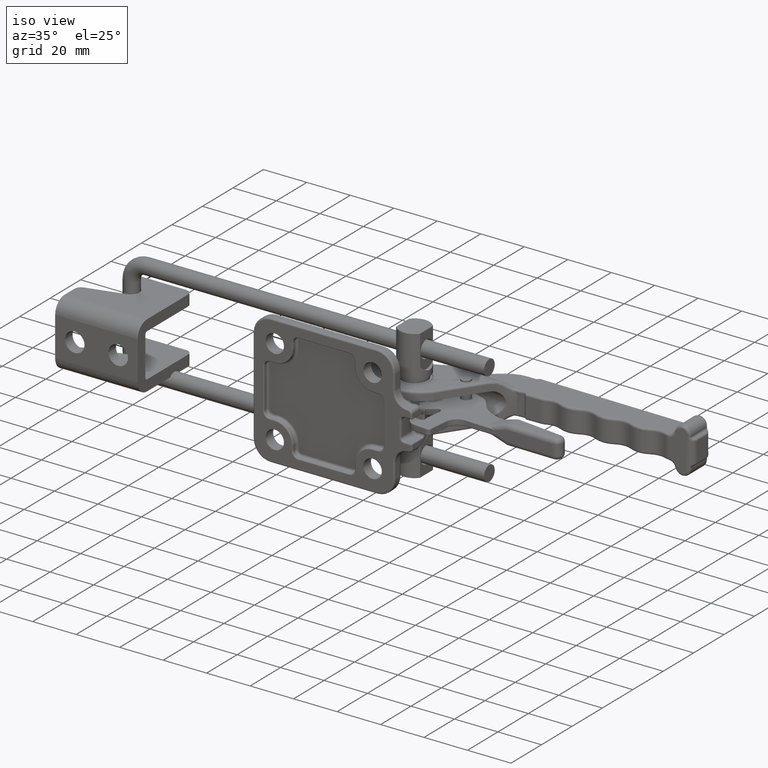
[diagram: clean part render]
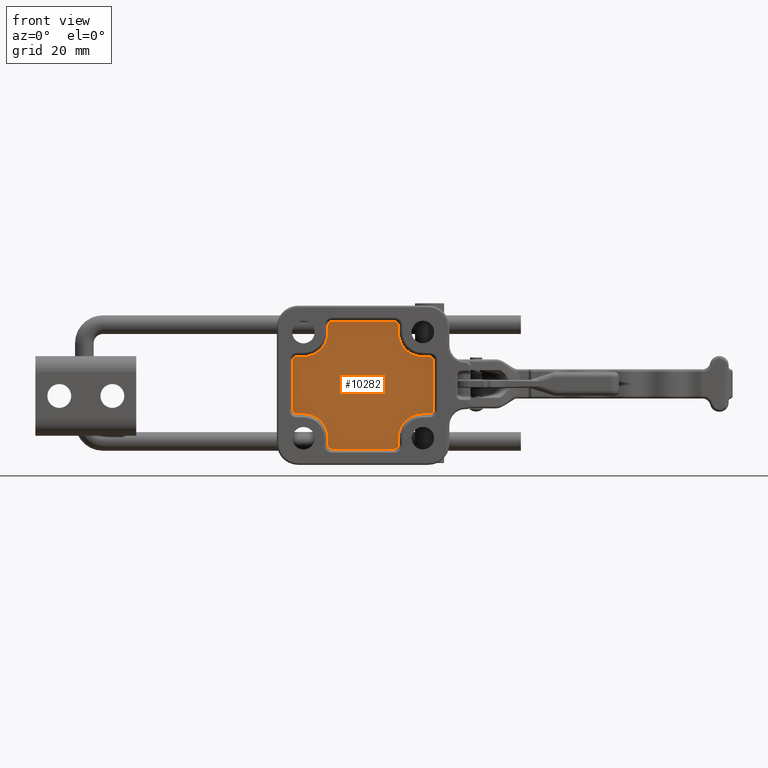
[diagram: tour spotlight — one face highlighted and labeled with its STEP entity id]
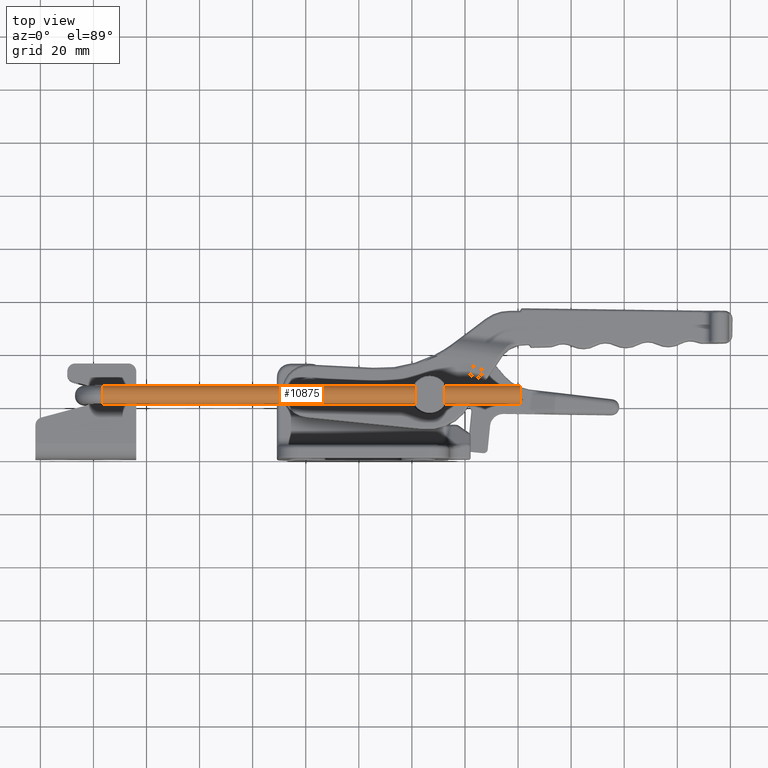
[diagram: tour spotlight — one face highlighted and labeled with its STEP entity id]
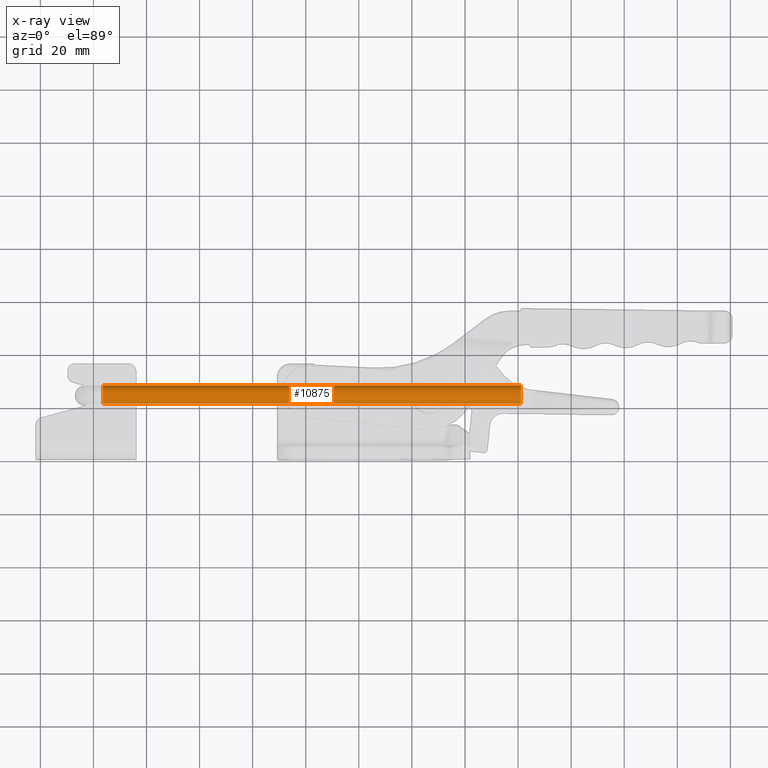
[diagram: x-ray of the same camera — body ghosted, this tour face saturated]
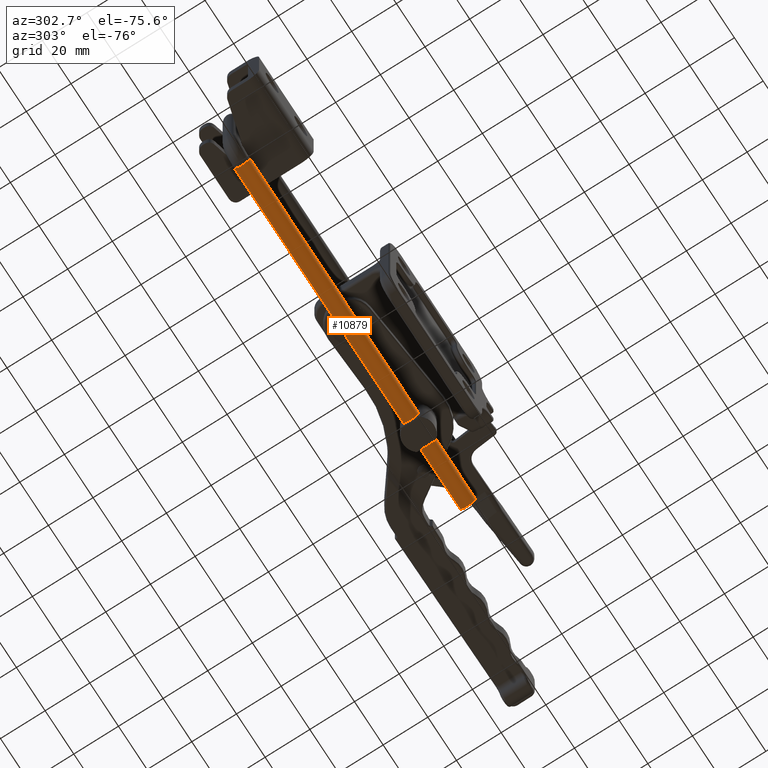
[diagram: tour spotlight — one face highlighted and labeled with its STEP entity id]
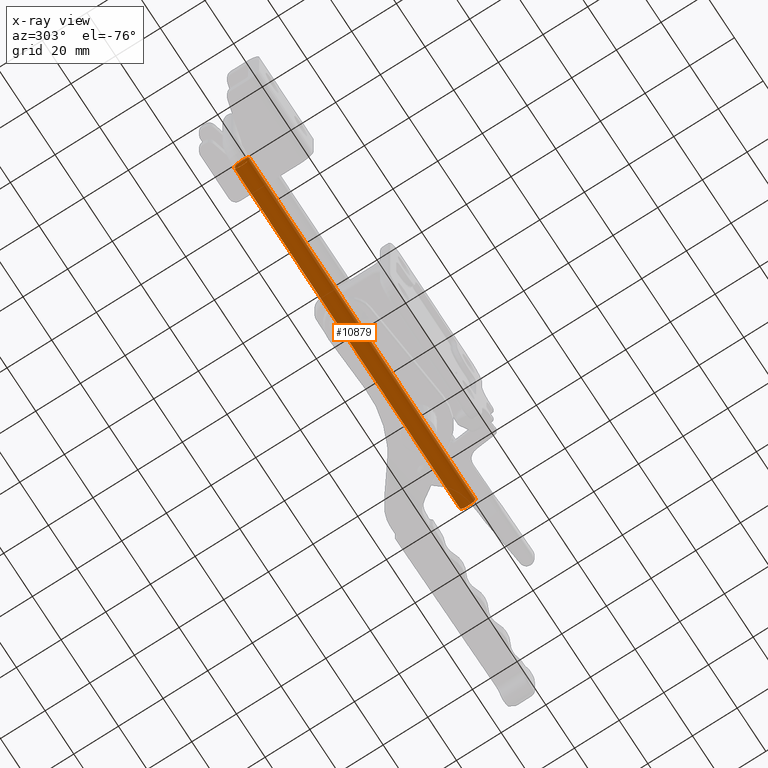
[diagram: x-ray of the same camera — body ghosted, this tour face saturated]
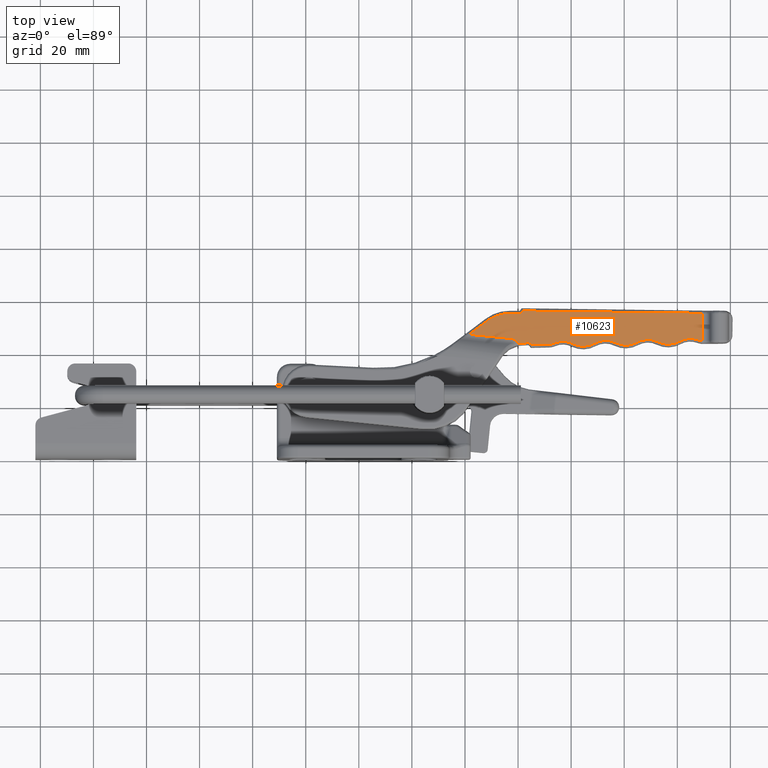
[diagram: tour spotlight — one face highlighted and labeled with its STEP entity id]
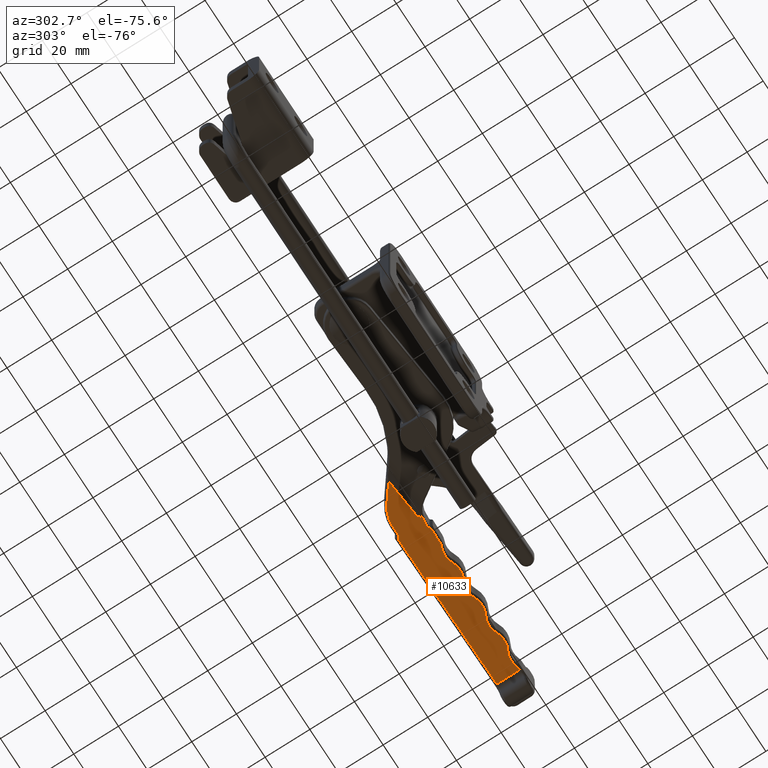
[diagram: tour spotlight — one face highlighted and labeled with its STEP entity id]
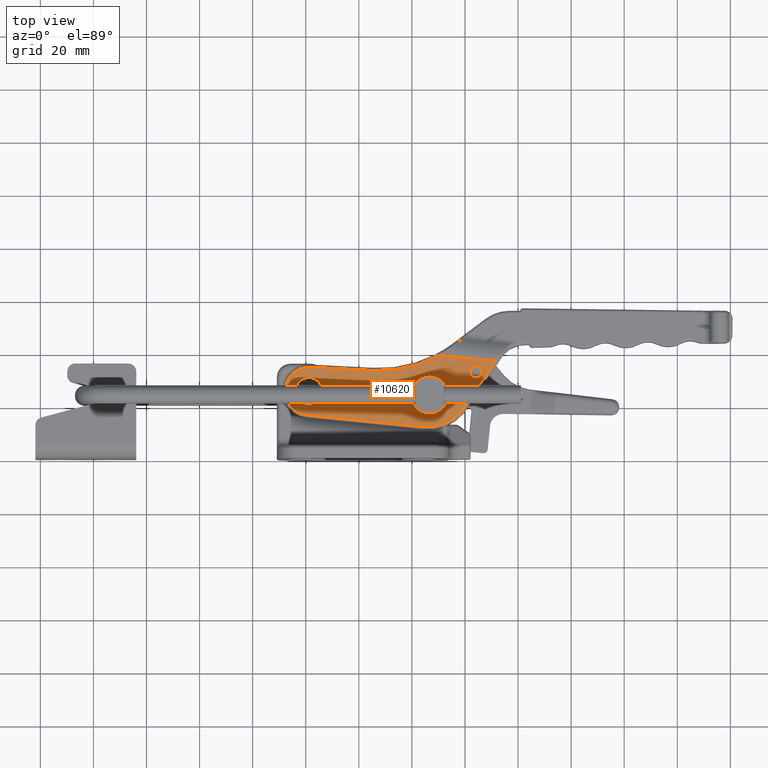
[diagram: tour spotlight — one face highlighted and labeled with its STEP entity id]
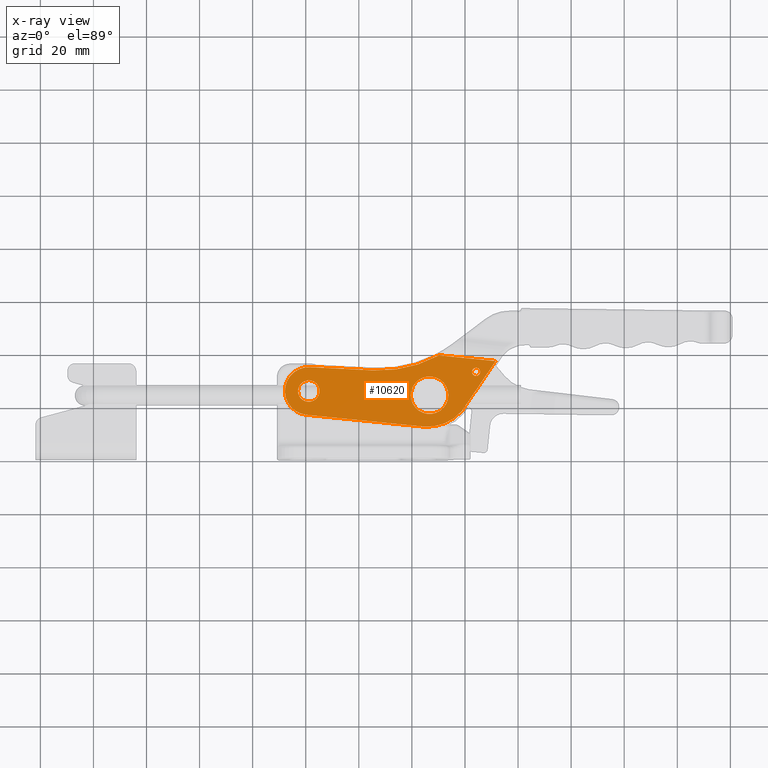
[diagram: x-ray of the same camera — body ghosted, this tour face saturated]
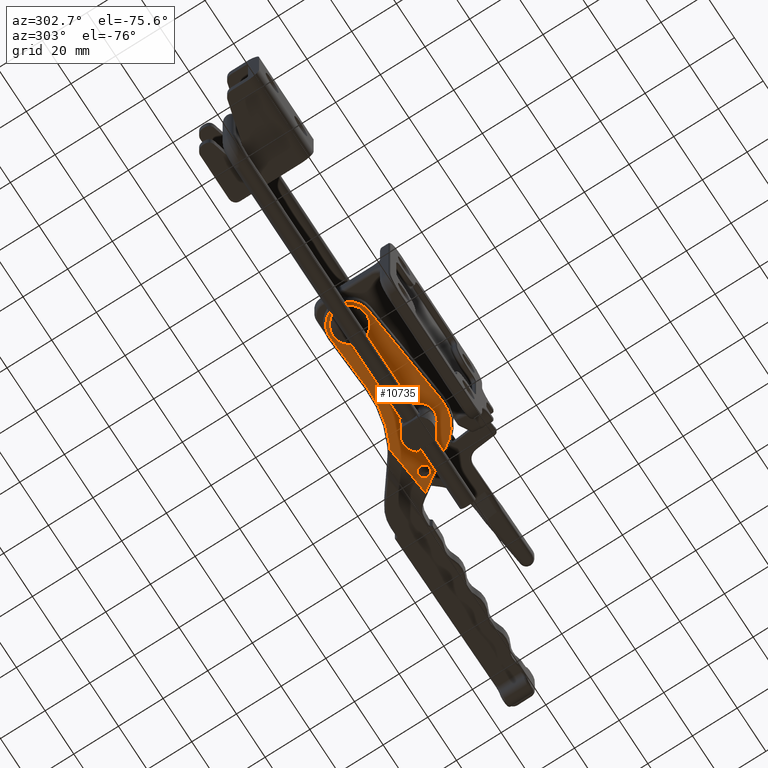
[diagram: tour spotlight — one face highlighted and labeled with its STEP entity id]
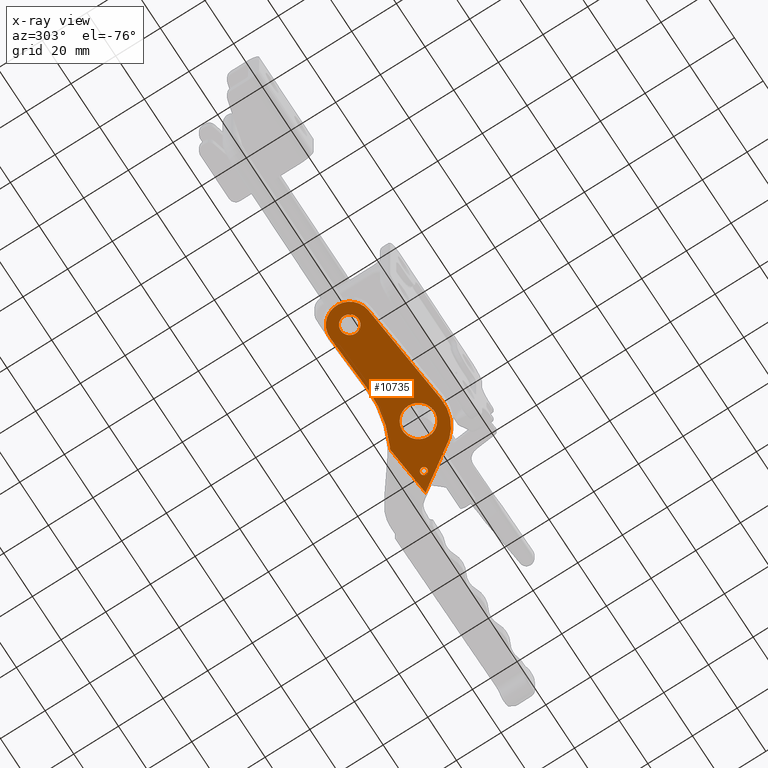
[diagram: x-ray of the same camera — body ghosted, this tour face saturated]
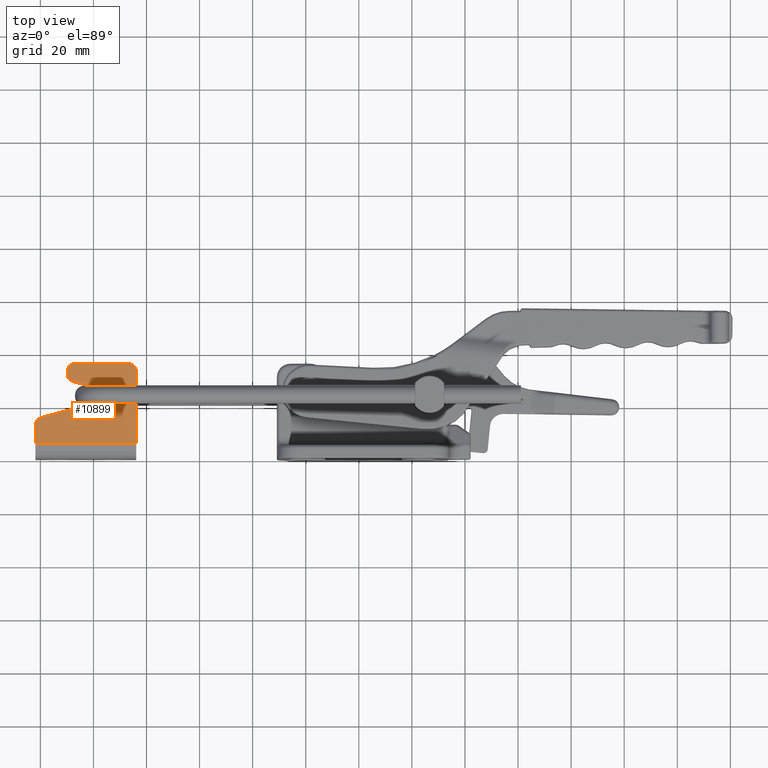
[diagram: tour spotlight — one face highlighted and labeled with its STEP entity id]
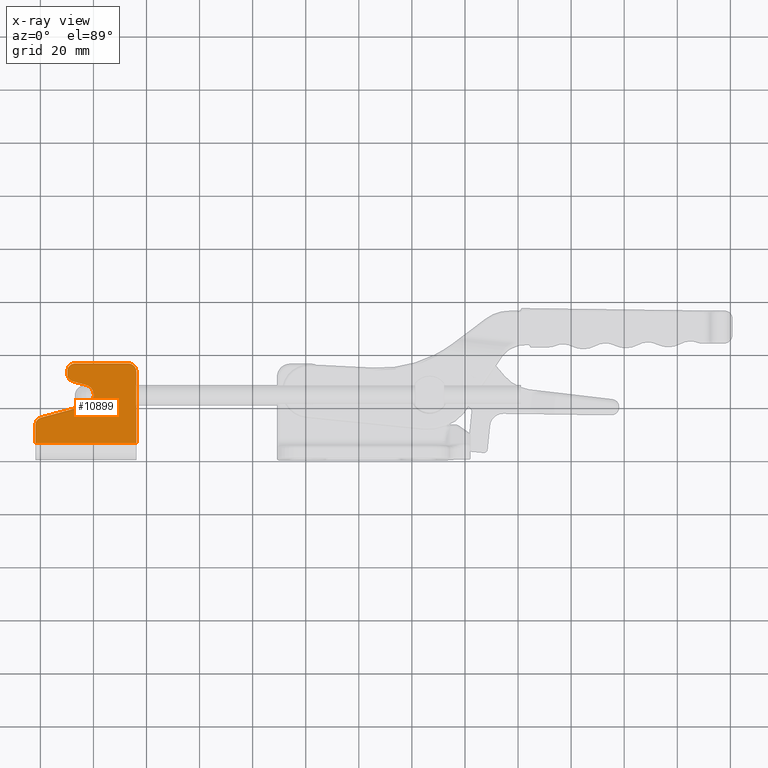
[diagram: x-ray of the same camera — body ghosted, this tour face saturated]
A machine part: a face-by-face anatomy tour. The part has 704 B-rep faces; the first image is the clean iso view, then the 8 largest visible faces are spotlighted one at a time (largest first), each with its STEP entity span.

Face 1 — front view, entity #10282. In plain terms, the highlighted planar face has unit normal (0, 1, 0).
Definition (entity closure, byte-faithful):
#665=PLANE('',#11105);
#983=FACE_OUTER_BOUND('',#1692,.T.);
#1692=EDGE_LOOP('',(#7073,#7074,#7075,#7076,#7077,#7078,#7079,#7080,#7081,
#7082,#7083,#7084,#7085,#7086,#7087,#7088,#7089,#7090,#7091,#7092,#7093,
#7094,#7095,#7096));
#2455=LINE('',#15730,#2985);
#2456=LINE('',#15739,#2986);
#2457=LINE('',#15747,#2987);
#2458=LINE('',#15755,#2988);
#2459=LINE('',#15763,#2989);
#2460=LINE('',#15771,#2990);
#2462=LINE('',#15781,#2992);
#2464=LINE('',#15793,#2994);
#2466=LINE('',#15805,#2996);
#2468=LINE('',#15817,#2998);
#2470=LINE('',#15829,#3000);
#2472=LINE('',#15841,#3002);
#2985=VECTOR('',#12535,2.5);
#2986=VECTOR('',#12548,18.5);
#2987=VECTOR('',#12559,2.5);
#2988=VECTOR('',#12570,2.5);
#2989=VECTOR('',#12581,23.4999999999999);
#2990=VECTOR('',#12592,2.5);
#2992=VECTOR('',#12604,2.5);
#2994=VECTOR('',#12618,18.5);
#2996=VECTOR('',#12632,2.5);
#2998=VECTOR('',#12646,2.5);
#3000=VECTOR('',#12660,23.4999999999999);
#3002=VECTOR('',#12674,2.5);
#3531=CIRCLE('',#11033,1.5);
#3534=CIRCLE('',#11038,1.5);
#3537=CIRCLE('',#11043,9.25);
#3540=CIRCLE('',#11048,1.5);
#3543=CIRCLE('',#11053,1.5);
#3546=CIRCLE('',#11058,9.25);
#3550=CIRCLE('',#11064,1.5);
#3554=CIRCLE('',#11070,1.5);
#3558=CIRCLE('',#11076,9.25);
#3562=CIRCLE('',#11082,1.5);
#3566=CIRCLE('',#11088,1.5);
#3569=CIRCLE('',#11093,9.25);
#4277=VERTEX_POINT('',#15727);
#4278=VERTEX_POINT('',#15729);
#4279=VERTEX_POINT('',#15733);
#4280=VERTEX_POINT('',#15737);
#4281=VERTEX_POINT('',#15741);
#4282=VERTEX_POINT('',#15745);
#4283=VERTEX_POINT('',#15749);
#4284=VERTEX_POINT('',#15753);
#4285=VERTEX_POINT('',#15757);
#4286=VERTEX_POINT('',#15761);
#4287=VERTEX_POINT('',#15765);
#4288=VERTEX_POINT('',#15769);
#4289=VERTEX_POINT('',#15773);
#4290=VERTEX_POINT('',#15777);
#4292=VERTEX_POINT('',#15783);
#4294=VERTEX_POINT('',#15789);
#4296=VERTEX_POINT('',#15795);
#4298=VERTEX_POINT('',#15801);
#4300=VERTEX_POINT('',#15807);
#4302=VERTEX_POINT('',#15813);
#4304=VERTEX_POINT('',#15819);
#4306=VERTEX_POINT('',#15825);
#4308=VERTEX_POINT('',#15831);
#4310=VERTEX_POINT('',#15837);
#5270=EDGE_CURVE('',#4277,#4278,#2455,.T.);
#5273=EDGE_CURVE('',#4278,#4279,#3531,.T.);
#5275=EDGE_CURVE('',#4279,#4280,#2456,.T.);
#5277=EDGE_CURVE('',#4280,#4281,#3534,.T.);
#5279=EDGE_CURVE('',#4281,#4282,#2457,.T.);
#5281=EDGE_CURVE('',#4282,#4283,#3537,.T.);
#5283=EDGE_CURVE('',#4283,#4284,#2458,.T.);
#5285=EDGE_CURVE('',#4284,#4285,#3540,.T.);
#5287=EDGE_CURVE('',#4285,#4286,#2459,.T.);
#5289=EDGE_CURVE('',#4286,#4287,#3543,.T.);
#5291=EDGE_CURVE('',#4287,#4288,#2460,.T.);
#5293=EDGE_CURVE('',#4288,#4289,#3546,.T.);
#5296=EDGE_CURVE('',#4289,#4290,#2462,.T.);
#5299=EDGE_CURVE('',#4290,#4292,#3550,.T.);
#5302=EDGE_CURVE('',#4292,#4294,#2464,.T.);
#5305=EDGE_CURVE('',#4294,#4296,#3554,.T.);
#5308=EDGE_CURVE('',#4296,#4298,#2466,.T.);
#5311=EDGE_CURVE('',#4298,#4300,#3558,.T.);
#5314=EDGE_CURVE('',#4300,#4302,#2468,.T.);
#5317=EDGE_CURVE('',#4302,#4304,#3562,.T.);
#5320=EDGE_CURVE('',#4304,#4306,#2470,.T.);
#5323=EDGE_CURVE('',#4306,#4308,#3566,.T.);
#5326=EDGE_CURVE('',#4308,#4310,#2472,.T.);
#5328=EDGE_CURVE('',#4310,#4277,#3569,.T.);
#7073=ORIENTED_EDGE('',*,*,#5270,.F.);
#7074=ORIENTED_EDGE('',*,*,#5328,.F.);
#7075=ORIENTED_EDGE('',*,*,#5326,.F.);
#7076=ORIENTED_EDGE('',*,*,#5323,.F.);
#7077=ORIENTED_EDGE('',*,*,#5320,.F.);
#7078=ORIENTED_EDGE('',*,*,#5317,.F.);
#7079=ORIENTED_EDGE('',*,*,#5314,.F.);
#7080=ORIENTED_EDGE('',*,*,#5311,.F.);
#7081=ORIENTED_EDGE('',*,*,#5308,.F.);
#7082=ORIENTED_EDGE('',*,*,#5305,.F.);
#7083=ORIENTED_EDGE('',*,*,#5302,.F.);
#7084=ORIENTED_EDGE('',*,*,#5299,.F.);
#7085=ORIENTED_EDGE('',*,*,#5296,.F.);
#7086=ORIENTED_EDGE('',*,*,#5293,.F.);
#7087=ORIENTED_EDGE('',*,*,#5291,.F.);
#7088=ORIENTED_EDGE('',*,*,#5289,.F.);
#7089=ORIENTED_EDGE('',*,*,#5287,.F.);
#7090=ORIENTED_EDGE('',*,*,#5285,.F.);
#7091=ORIENTED_EDGE('',*,*,#5283,.F.);
#7092=ORIENTED_EDGE('',*,*,#5281,.F.);
#7093=ORIENTED_EDGE('',*,*,#5279,.F.);
#7094=ORIENTED_EDGE('',*,*,#5277,.F.);
#7095=ORIENTED_EDGE('',*,*,#5275,.F.);
#7096=ORIENTED_EDGE('',*,*,#5273,.F.);
#10282=ADVANCED_FACE('',(#983),#665,.F.);
#11033=AXIS2_PLACEMENT_3D('',#15735,#12542,#12543);
#11038=AXIS2_PLACEMENT_3D('',#15743,#12553,#12554);
#11043=AXIS2_PLACEMENT_3D('',#15751,#12564,#12565);
#11048=AXIS2_PLACEMENT_3D('',#15759,#12575,#12576);
#11053=AXIS2_PLACEMENT_3D('',#15767,#12586,#12587);
#11058=AXIS2_PLACEMENT_3D('',#15775,#12597,#12598);
#11064=AXIS2_PLACEMENT_3D('',#15787,#12611,#12612);
#11070=AXIS2_PLACEMENT_3D('',#15799,#12625,#12626);
#11076=AXIS2_PLACEMENT_3D('',#15811,#12639,#12640);
#11082=AXIS2_PLACEMENT_3D('',#15823,#12653,#12654);
#11088=AXIS2_PLACEMENT_3D('',#15835,#12667,#12668);
#11093=AXIS2_PLACEMENT_3D('',#15844,#12679,#12680);
#11105=AXIS2_PLACEMENT_3D('',#15867,#12714,#12715);
#12535=DIRECTION('',(1.,0.,0.));
#12542=DIRECTION('center_axis',(0.,1.,0.));
#12543=DIRECTION('ref_axis',(0.70710678118655,0.,0.707106781186545));
#12548=DIRECTION('',(0.,0.,-1.));
#12553=DIRECTION('center_axis',(0.,1.,0.));
#12554=DIRECTION('ref_axis',(0.70710678118655,0.,-0.707106781186545));
#12559=DIRECTION('',(-1.,0.,-8.88178419700125E-16));
#12564=DIRECTION('center_axis',(0.,-1.,0.));
#12565=DIRECTION('ref_axis',(-0.707106781186545,0.,0.70710678118655));
#12570=DIRECTION('',(0.,0.,-1.));
#12575=DIRECTION('center_axis',(0.,1.,0.));
#12576=DIRECTION('ref_axis',(0.70710678118655,0.,-0.707106781186545));
#12581=DIRECTION('',(-1.,0.,-7.08652994441589E-17));
#12586=DIRECTION('center_axis',(0.,1.,0.));
#12587=DIRECTION('ref_axis',(-0.70710678118655,0.,-0.707106781186545));
#12592=DIRECTION('',(1.77635683940025E-15,0.,1.));
#12597=DIRECTION('center_axis',(0.,-1.,0.));
#12598=DIRECTION('ref_axis',(0.707106781186545,0.,0.70710678118655));
#12604=DIRECTION('',(-1.,0.,-8.88178419700128E-16));
#12611=DIRECTION('center_axis',(0.,1.,0.));
#12612=DIRECTION('ref_axis',(-0.70710678118655,0.,-0.707106781186545));
#12618=DIRECTION('',(-4.50090415388577E-16,0.,1.));
#12625=DIRECTION('center_axis',(0.,1.,0.));
#12626=DIRECTION('ref_axis',(-0.70710678118655,0.,0.707106781186545));
#12632=DIRECTION('',(1.,0.,0.));
#12639=DIRECTION('center_axis',(0.,-1.,0.));
#12640=DIRECTION('ref_axis',(0.707106781186545,0.,-0.70710678118655));
#12646=DIRECTION('',(0.,0.,1.));
#12653=DIRECTION('center_axis',(0.,1.,0.));
#12654=DIRECTION('ref_axis',(-0.70710678118655,0.,0.707106781186545));
#12660=DIRECTION('',(1.,0.,0.));
#12667=DIRECTION('center_axis',(0.,1.,0.));
#12668=DIRECTION('ref_axis',(0.70710678118655,0.,0.707106781186545));
#12674=DIRECTION('',(0.,0.,-1.));
#12679=DIRECTION('center_axis',(0.,-1.,0.));
#12680=DIRECTION('ref_axis',(-0.707106781186545,0.,-0.70710678118655));
#12714=DIRECTION('center_axis',(0.,1.,0.));
#12715=DIRECTION('ref_axis',(0.,0.,1.));
#15727=CARTESIAN_POINT('',(1466.078671449,829.1022942942,10.75));
#15729=CARTESIAN_POINT('',(1468.578671449,829.1022942942,10.75));
#15730=CARTESIAN_POINT('',(1471.078671449,829.1022942942,10.75));
#15733=CARTESIAN_POINT('',(1470.078671449,829.1022942942,9.25));
#15735=CARTESIAN_POINT('Origin',(1468.578671449,829.1022942942,9.25));
#15737=CARTESIAN_POINT('',(1470.078671449,829.1022942942,-9.25));
#15739=CARTESIAN_POINT('',(1470.078671449,829.1022942942,4.625));
#15741=CARTESIAN_POINT('',(1468.578671449,829.1022942942,-10.75));
#15743=CARTESIAN_POINT('Origin',(1468.578671449,829.1022942942,-9.25));
#15745=CARTESIAN_POINT('',(1466.078671449,829.1022942942,-10.75));
#15747=CARTESIAN_POINT('',(1472.328671449,829.1022942942,-10.75));
#15749=CARTESIAN_POINT('',(1456.828671449,829.1022942942,-20.));
#15751=CARTESIAN_POINT('Origin',(1466.078671449,829.1022942942,-20.));
#15753=CARTESIAN_POINT('',(1456.828671449,829.1022942942,-22.5));
#15755=CARTESIAN_POINT('',(1456.828671449,829.1022942942,-10.));
#15757=CARTESIAN_POINT('',(1455.328671449,829.1022942942,-24.));
#15759=CARTESIAN_POINT('Origin',(1455.328671449,829.1022942942,-22.5));
#15761=CARTESIAN_POINT('',(1431.828671449,829.1022942942,-24.));
#15763=CARTESIAN_POINT('',(1465.703671449,829.1022942942,-24.));
#15765=CARTESIAN_POINT('',(1430.328671449,829.1022942942,-22.5));
#15767=CARTESIAN_POINT('Origin',(1431.828671449,829.1022942942,-22.5));
#15769=CARTESIAN_POINT('',(1430.328671449,829.1022942942,-20.));
#15771=CARTESIAN_POINT('',(1430.328671449,829.1022942942,-11.25));
#15773=CARTESIAN_POINT('',(1421.078671449,829.1022942942,-10.75));
#15775=CARTESIAN_POINT('Origin',(1421.078671449,829.1022942942,-20.));
#15777=CARTESIAN_POINT('',(1418.578671449,829.1022942942,-10.75));
#15781=CARTESIAN_POINT('',(1448.578671449,829.1022942942,-10.75));
#15783=CARTESIAN_POINT('',(1417.078671449,829.1022942942,-9.25));
#15787=CARTESIAN_POINT('Origin',(1418.578671449,829.1022942942,-9.25));
#15789=CARTESIAN_POINT('',(1417.078671449,829.1022942942,9.25));
#15793=CARTESIAN_POINT('',(1417.078671449,829.1022942942,-4.62500000000001));
#15795=CARTESIAN_POINT('',(1418.578671449,829.1022942942,10.75));
#15799=CARTESIAN_POINT('Origin',(1418.578671449,829.1022942942,9.25));
#15801=CARTESIAN_POINT('',(1421.078671449,829.1022942942,10.75));
#15805=CARTESIAN_POINT('',(1447.328671449,829.1022942942,10.75));
#15807=CARTESIAN_POINT('',(1430.328671449,829.1022942942,20.));
#15811=CARTESIAN_POINT('Origin',(1421.078671449,829.1022942942,20.));
#15813=CARTESIAN_POINT('',(1430.328671449,829.1022942942,22.5));
#15817=CARTESIAN_POINT('',(1430.328671449,829.1022942942,10.));
#15819=CARTESIAN_POINT('',(1431.828671449,829.1022942942,24.));
#15823=CARTESIAN_POINT('Origin',(1431.828671449,829.1022942942,22.5));
#15825=CARTESIAN_POINT('',(1455.328671449,829.1022942942,24.));
#15829=CARTESIAN_POINT('',(1453.953671449,829.1022942942,24.));
#15831=CARTESIAN_POINT('',(1456.828671449,829.1022942942,22.5));
#15835=CARTESIAN_POINT('Origin',(1455.328671449,829.1022942942,22.5));
#15837=CARTESIAN_POINT('',(1456.828671449,829.1022942942,20.));
#15841=CARTESIAN_POINT('',(1456.828671449,829.1022942942,11.25));
#15844=CARTESIAN_POINT('Origin',(1466.078671449,829.1022942942,20.));
#15867=CARTESIAN_POINT('Origin',(1476.078671449,829.1022942942,0.));

Face 2 — top view, entity #10875. An x-ray twin of the same camera follows (body ghosted, this face saturated) — the face is partly hidden behind the body. In plain terms, the highlighted cylindrical surface (bore or boss wall) has radius 3.5 mm, axis along (1, -0, -0).
Definition (entity closure, byte-faithful):
#642=FACE_BOUND('',#2351,.T.);
#1576=FACE_OUTER_BOUND('',#2350,.T.);
#2350=EDGE_LOOP('',(#9737));
#2351=EDGE_LOOP('',(#9738));
#4152=CIRCLE('',#12178,3.5);
#4153=CIRCLE('',#12179,3.5);
#5080=VERTEX_POINT('',#30864);
#5081=VERTEX_POINT('',#30866);
#6645=EDGE_CURVE('',#5080,#5080,#4152,.T.);
#6646=EDGE_CURVE('',#5081,#5081,#4153,.T.);
#9737=ORIENTED_EDGE('',*,*,#6645,.F.);
#9738=ORIENTED_EDGE('',*,*,#6646,.T.);
#10191=CYLINDRICAL_SURFACE('',#12177,3.5);
#10875=ADVANCED_FACE('',(#1576,#642),#10191,.T.);
#12177=AXIS2_PLACEMENT_3D('',#30863,#15248,#15249);
#12178=AXIS2_PLACEMENT_3D('',#30865,#15250,#15251);
#12179=AXIS2_PLACEMENT_3D('',#30867,#15252,#15253);
#15248=DIRECTION('center_axis',(1.,1.12784561231762E-16,0.));
#15249=DIRECTION('ref_axis',(-1.12784561231762E-16,1.,0.));
#15250=DIRECTION('center_axis',(1.,1.31300582856729E-16,0.));
#15251=DIRECTION('ref_axis',(-1.31300582856729E-16,1.,0.));
#15252=DIRECTION('center_axis',(1.,1.31300582856729E-16,0.));
#15253=DIRECTION('ref_axis',(-1.31300582856729E-16,1.,0.));
#30863=CARTESIAN_POINT('Origin',(-75.25,-22.,0.));
#30864=CARTESIAN_POINT('',(82.25,-25.5,4.28626379701574E-16));
#30865=CARTESIAN_POINT('Origin',(82.25,-22.,0.));
#30866=CARTESIAN_POINT('',(-75.25,-25.5,4.28626379701574E-16));
#30867=CARTESIAN_POINT('Origin',(-75.25,-22.,0.));

Face 3 — auxiliary view, entity #10879. An x-ray twin of the same camera follows (body ghosted, this face saturated) — the face is partly hidden behind the body. In plain terms, the highlighted cylindrical surface (bore or boss wall) has radius 3.5 mm, axis along (-1, 0, 0).
Definition (entity closure, byte-faithful):
#646=FACE_BOUND('',#2359,.T.);
#1580=FACE_OUTER_BOUND('',#2358,.T.);
#2358=EDGE_LOOP('',(#9745));
#2359=EDGE_LOOP('',(#9746));
#4156=CIRCLE('',#12185,3.5);
#4157=CIRCLE('',#12187,3.5);
#5084=VERTEX_POINT('',#30875);
#5085=VERTEX_POINT('',#30878);
#6649=EDGE_CURVE('',#5084,#5084,#4156,.T.);
#6650=EDGE_CURVE('',#5085,#5085,#4157,.T.);
#9745=ORIENTED_EDGE('',*,*,#6649,.F.);
#9746=ORIENTED_EDGE('',*,*,#6650,.T.);
#10193=CYLINDRICAL_SURFACE('',#12186,3.5);
#10879=ADVANCED_FACE('',(#1580,#646),#10193,.T.);
#12185=AXIS2_PLACEMENT_3D('',#30876,#15264,#15265);
#12186=AXIS2_PLACEMENT_3D('',#30877,#15266,#15267);
#12187=AXIS2_PLACEMENT_3D('',#30879,#15268,#15269);
#15264=DIRECTION('center_axis',(-1.,-2.53765262771464E-16,0.));
#15265=DIRECTION('ref_axis',(2.53765262771464E-16,-1.,0.));
#15266=DIRECTION('center_axis',(-1.,-2.53765262771464E-16,0.));
#15267=DIRECTION('ref_axis',(2.53765262771464E-16,-1.,0.));
#15268=DIRECTION('center_axis',(-1.,-2.53765262771464E-16,0.));
#15269=DIRECTION('ref_axis',(2.53765262771464E-16,-1.,0.));
#30875=CARTESIAN_POINT('',(-75.25,25.5,4.28626379701574E-16));
#30876=CARTESIAN_POINT('Origin',(-75.25,22.,0.));
#30877=CARTESIAN_POINT('Origin',(82.25,22.,0.));
#30878=CARTESIAN_POINT('',(82.25,25.5,4.28626379701574E-16));
#30879=CARTESIAN_POINT('Origin',(82.25,22.,0.));

Face 4 — top view, entity #10623. In plain terms, the highlighted planar face has unit normal (-0, 0, 1).
Definition (entity closure, byte-faithful):
#326=B_SPLINE_CURVE_WITH_KNOTS('',3,(#22472,#22473,#22474,#22475,#22476,
#22477,#22478,#22479,#22480,#22481,#22482,#22483,#22484,#22485),
 .UNSPECIFIED.,.F.,.F.,(4,2,2,2,2,2,4),(6.35312270628383E-8,0.25,0.5,0.735792123727999,
0.75,0.952531548422181,1.),.UNSPECIFIED.);
#327=B_SPLINE_CURVE_WITH_KNOTS('',3,(#22487,#22488,#22489,#22490,#22491,
#22492,#22493,#22494,#22495,#22496,#22497,#22498,#22499,#22500),
 .UNSPECIFIED.,.F.,.F.,(4,1,1,1,1,1,1,1,1,1,1,4),(0.,0.3333333333336,0.416666666667,
0.5000000000005,0.5833333333339,0.6250000000006,0.6666666666673,0.7083333821032,
0.750000097539,0.8333335284108,0.9166669592825,1.),.UNSPECIFIED.);
#328=B_SPLINE_CURVE_WITH_KNOTS('',3,(#22533,#22534,#22535,#22536,#22537,
#22538,#22539,#22540),.UNSPECIFIED.,.F.,.F.,(4,1,1,1,1,4),(0.,0.2,0.4,0.6,
0.8,1.),.UNSPECIFIED.);
#329=B_SPLINE_CURVE_WITH_KNOTS('',3,(#22541,#22542,#22543,#22544,#22545,
#22546),.UNSPECIFIED.,.F.,.F.,(4,1,1,4),(0.,0.3333333333333,0.6666666666667,
1.),.UNSPECIFIED.);
#718=PLANE('',#11780);
#1324=FACE_OUTER_BOUND('',#2057,.T.);
#2057=EDGE_LOOP('',(#8630,#8631,#8632,#8633,#8634,#8635,#8636,#8637,#8638,
#8639,#8640,#8641,#8642,#8643,#8644,#8645,#8646,#8647,#8648,#8649,#8650));
#2732=LINE('',#22461,#3262);
#2733=LINE('',#22502,#3263);
#2734=LINE('',#22522,#3264);
#2735=LINE('',#22524,#3265);
#2736=LINE('',#22528,#3266);
#2737=LINE('',#22531,#3267);
#3262=VECTOR('',#14310,15.5831271818545);
#3263=VECTOR('',#14315,6.63296832743618);
#3264=VECTOR('',#14334,10.3597213961001);
#3265=VECTOR('',#14335,67.6172076966122);
#3266=VECTOR('',#14338,3.31069578319442);
#3267=VECTOR('',#14341,8.36493791948472);
#3944=CIRCLE('',#11781,4.999999999995);
#3945=CIRCLE('',#11782,8.500000000003);
#3946=CIRCLE('',#11783,8.499999999996);
#3947=CIRCLE('',#11784,8.500000000004);
#3948=CIRCLE('',#11785,8.499999999995);
#3949=CIRCLE('',#11786,8.500000000008);
#3950=CIRCLE('',#11787,8.499999999996);
#3951=CIRCLE('',#11788,8.500000000004);
#3952=CIRCLE('',#11789,4.999999999999);
#3953=CIRCLE('',#11790,1.75);
#3954=CIRCLE('',#11791,14.);
#4755=VERTEX_POINT('',#22459);
#4756=VERTEX_POINT('',#22460);
#4757=VERTEX_POINT('',#22470);
#4758=VERTEX_POINT('',#22471);
#4759=VERTEX_POINT('',#22486);
#4760=VERTEX_POINT('',#22501);
#4761=VERTEX_POINT('',#22503);
#4762=VERTEX_POINT('',#22505);
#4763=VERTEX_POINT('',#22507);
#4764=VERTEX_POINT('',#22509);
#4765=VERTEX_POINT('',#22511);
#4766=VERTEX_POINT('',#22513);
#4767=VERTEX_POINT('',#22515);
#4768=VERTEX_POINT('',#22517);
#4769=VERTEX_POINT('',#22519);
#4770=VERTEX_POINT('',#22521);
#4771=VERTEX_POINT('',#22523);
#4772=VERTEX_POINT('',#22525);
#4773=VERTEX_POINT('',#22527);
#4774=VERTEX_POINT('',#22529);
#4775=VERTEX_POINT('',#22532);
#6102=EDGE_CURVE('',#4755,#4756,#2732,.T.);
#6105=EDGE_CURVE('',#4757,#4758,#326,.T.);
#6106=EDGE_CURVE('',#4759,#4758,#327,.T.);
#6107=EDGE_CURVE('',#4759,#4760,#2733,.T.);
#6108=EDGE_CURVE('',#4760,#4761,#3944,.T.);
#6109=EDGE_CURVE('',#4761,#4762,#3945,.T.);
#6110=EDGE_CURVE('',#4762,#4763,#3946,.T.);
#6111=EDGE_CURVE('',#4763,#4764,#3947,.T.);
#6112=EDGE_CURVE('',#4764,#4765,#3948,.T.);
#6113=EDGE_CURVE('',#4765,#4766,#3949,.T.);
#6114=EDGE_CURVE('',#4766,#4767,#3950,.T.);
#6115=EDGE_CURVE('',#4767,#4768,#3951,.T.);
#6116=EDGE_CURVE('',#4768,#4769,#3952,.T.);
#6117=EDGE_CURVE('',#4770,#4769,#2734,.T.);
#6118=EDGE_CURVE('',#4770,#4771,#2735,.T.);
#6119=EDGE_CURVE('',#4771,#4772,#3953,.T.);
#6120=EDGE_CURVE('',#4772,#4773,#2736,.T.);
#6121=EDGE_CURVE('',#4773,#4774,#3954,.T.);
#6122=EDGE_CURVE('',#4774,#4755,#2737,.T.);
#6123=EDGE_CURVE('',#4775,#4756,#328,.T.);
#6124=EDGE_CURVE('',#4775,#4757,#329,.T.);
#8630=ORIENTED_EDGE('',*,*,#6105,.T.);
#8631=ORIENTED_EDGE('',*,*,#6106,.F.);
#8632=ORIENTED_EDGE('',*,*,#6107,.T.);
#8633=ORIENTED_EDGE('',*,*,#6108,.T.);
#8634=ORIENTED_EDGE('',*,*,#6109,.T.);
#8635=ORIENTED_EDGE('',*,*,#6110,.T.);
#8636=ORIENTED_EDGE('',*,*,#6111,.T.);
#8637=ORIENTED_EDGE('',*,*,#6112,.T.);
#8638=ORIENTED_EDGE('',*,*,#6113,.T.);
#8639=ORIENTED_EDGE('',*,*,#6114,.T.);
#8640=ORIENTED_EDGE('',*,*,#6115,.T.);
#8641=ORIENTED_EDGE('',*,*,#6116,.T.);
#8642=ORIENTED_EDGE('',*,*,#6117,.F.);
#8643=ORIENTED_EDGE('',*,*,#6118,.T.);
#8644=ORIENTED_EDGE('',*,*,#6119,.T.);
#8645=ORIENTED_EDGE('',*,*,#6120,.T.);
#8646=ORIENTED_EDGE('',*,*,#6121,.T.);
#8647=ORIENTED_EDGE('',*,*,#6122,.T.);
#8648=ORIENTED_EDGE('',*,*,#6102,.T.);
#8649=ORIENTED_EDGE('',*,*,#6123,.F.);
#8650=ORIENTED_EDGE('',*,*,#6124,.T.);
#10623=ADVANCED_FACE('',(#1324),#718,.T.);
#11780=AXIS2_PLACEMENT_3D('',#22469,#14313,#14314);
#11781=AXIS2_PLACEMENT_3D('',#22504,#14316,#14317);
#11782=AXIS2_PLACEMENT_3D('',#22506,#14318,#14319);
#11783=AXIS2_PLACEMENT_3D('',#22508,#14320,#14321);
#11784=AXIS2_PLACEMENT_3D('',#22510,#14322,#14323);
#11785=AXIS2_PLACEMENT_3D('',#22512,#14324,#14325);
#11786=AXIS2_PLACEMENT_3D('',#22514,#14326,#14327);
#11787=AXIS2_PLACEMENT_3D('',#22516,#14328,#14329);
#11788=AXIS2_PLACEMENT_3D('',#22518,#14330,#14331);
#11789=AXIS2_PLACEMENT_3D('',#22520,#14332,#14333);
#11790=AXIS2_PLACEMENT_3D('',#22526,#14336,#14337);
#11791=AXIS2_PLACEMENT_3D('',#22530,#14339,#14340);
#14310=DIRECTION('',(0.994897029791678,-0.100895491037498,9.82818710194078E-10));
#14313=DIRECTION('center_axis',(0.,0.,1.));
#14314=DIRECTION('ref_axis',(1.,0.,0.));
#14315=DIRECTION('',(0.999732877836257,0.023112182355549,0.));
#14316=DIRECTION('center_axis',(0.,0.,1.));
#14317=DIRECTION('ref_axis',(0.0267988350891099,-0.999640846723395,0.));
#14318=DIRECTION('center_axis',(0.,0.,-1.));
#14319=DIRECTION('ref_axis',(-0.398309653414494,0.917251012535187,0.));
#14320=DIRECTION('center_axis',(0.,0.,1.));
#14321=DIRECTION('ref_axis',(-0.450745808149292,-0.892652349145983,0.));
#14322=DIRECTION('center_axis',(0.,0.,-1.));
#14323=DIRECTION('ref_axis',(-0.490195462549185,0.871612533466672,0.));
#14324=DIRECTION('center_axis',(0.,0.,1.));
#14325=DIRECTION('ref_axis',(-0.450745808172007,-0.892652349134513,0.));
#14326=DIRECTION('center_axis',(0.,0.,-1.));
#14327=DIRECTION('ref_axis',(-0.49019546254899,0.871612533466782,0.));
#14328=DIRECTION('center_axis',(0.,0.,1.));
#14329=DIRECTION('ref_axis',(-0.450745808172007,-0.892652349134513,0.));
#14330=DIRECTION('center_axis',(0.,0.,-1.));
#14331=DIRECTION('ref_axis',(-0.490195462559877,0.871612533460659,0.));
#14332=DIRECTION('center_axis',(0.,0.,1.));
#14333=DIRECTION('ref_axis',(-0.356911867964208,-0.93413806180152,0.));
#14334=DIRECTION('',(-2.194785619708E-14,-1.,0.));
#14335=DIRECTION('',(-0.999904767694039,0.0138005631309105,0.));
#14336=DIRECTION('center_axis',(0.,0.,-1.));
#14337=DIRECTION('ref_axis',(0.897507332707917,-0.440999532579708,0.));
#14338=DIRECTION('',(-0.999904767694038,0.0138005631309805,0.));
#14339=DIRECTION('center_axis',(0.,0.,1.));
#14340=DIRECTION('ref_axis',(0.0138005631332601,0.999904767694006,0.));
#14341=DIRECTION('',(-0.798067578276503,-0.602567955092102,0.));
#22459=CARTESIAN_POINT('',(1483.633327832,873.6116341499,5.5));
#22460=CARTESIAN_POINT('',(1499.13693478009,872.039366880989,5.50000001021046));
#22461=CARTESIAN_POINT('',(1483.633327832,873.6116341499,5.5));
#22469=CARTESIAN_POINT('Origin',(1571.497535777,946.0709192894,5.5));
#22470=CARTESIAN_POINT('',(1505.37172375616,870.406948080282,5.49999945595843));
#22471=CARTESIAN_POINT('',(1505.845407463,870.3814689507,5.49999999555723));
#22472=CARTESIAN_POINT('Ctrl Pts',(1505.37172376403,870.406947981178,5.5));
#22473=CARTESIAN_POINT('Ctrl Pts',(1505.41111245407,870.405869532502,5.49999999967494));
#22474=CARTESIAN_POINT('Ctrl Pts',(1505.45060256005,870.404889875957,5.49999999983768));
#22475=CARTESIAN_POINT('Ctrl Pts',(1505.52967703633,870.402582526067,5.50000000000039));
#22476=CARTESIAN_POINT('Ctrl Pts',(1505.56926136567,870.401255179233,5.50000000000008));
#22477=CARTESIAN_POINT('Ctrl Pts',(1505.64606765569,870.397852682228,5.49999999999964));
#22478=CARTESIAN_POINT('Ctrl Pts',(1505.68329592274,870.395823790206,5.49999999989061));
#22479=CARTESIAN_POINT('Ctrl Pts',(1505.72277754987,870.392981154427,5.49999999999534));
#22480=CARTESIAN_POINT('Ctrl Pts',(1505.72502138202,870.392817219771,5.49999999999937));
#22481=CARTESIAN_POINT('Ctrl Pts',(1505.75925143975,870.390279052143,5.49999999999748));
#22482=CARTESIAN_POINT('Ctrl Pts',(1505.79124786548,870.387415247296,5.49999999740027));
#22483=CARTESIAN_POINT('Ctrl Pts',(1505.8305239199,870.383173881998,5.49999999549146));
#22484=CARTESIAN_POINT('Ctrl Pts',(1505.83797169715,870.382337344629,5.49999999529107));
#22485=CARTESIAN_POINT('Ctrl Pts',(1505.845407463,870.3814689507,5.49999999538434));
#22486=CARTESIAN_POINT('',(1506.999141365,869.6546924943,5.5));
#22487=CARTESIAN_POINT('Ctrl Pts',(1506.999141365,869.6546924943,5.5));
#22488=CARTESIAN_POINT('Ctrl Pts',(1506.919288616,869.7912658565,5.5));
#22489=CARTESIAN_POINT('Ctrl Pts',(1506.792235373,869.9436710132,5.5));
#22490=CARTESIAN_POINT('Ctrl Pts',(1506.608927428,870.0913082202,5.5));
#22491=CARTESIAN_POINT('Ctrl Pts',(1506.511607407,870.1576867345,5.5));
#22492=CARTESIAN_POINT('Ctrl Pts',(1506.426195405,870.2064820069,5.500000000001));
#22493=CARTESIAN_POINT('Ctrl Pts',(1506.355545945,870.2414020798,5.499999999999));
#22494=CARTESIAN_POINT('Ctrl Pts',(1506.301418137,870.2655096277,5.500000000003));
#22495=CARTESIAN_POINT('Ctrl Pts',(1506.246388715,870.2873874907,5.499999999988));
#22496=CARTESIAN_POINT('Ctrl Pts',(1506.172123151,870.3135535261,5.500000000065));
#22497=CARTESIAN_POINT('Ctrl Pts',(1506.077714806,870.3408450147,5.499999999478));
#22498=CARTESIAN_POINT('Ctrl Pts',(1505.962189318,870.3655943124,5.500000001905));
#22499=CARTESIAN_POINT('Ctrl Pts',(1505.884568943,870.3768954301,5.499999995903));
#22500=CARTESIAN_POINT('Ctrl Pts',(1505.845407463,870.3814689507,5.499999995903));
#22501=CARTESIAN_POINT('',(1513.63033918528,869.808514000053,5.5));
#22502=CARTESIAN_POINT('',(1506.999141365,869.6546924943,5.5));
#22503=CARTESIAN_POINT('',(1515.487775185,870.2249671227,5.5));
#22504=CARTESIAN_POINT('Origin',(1513.496226918,874.8112221854,5.5));
#22505=CARTESIAN_POINT('',(1522.704746609,870.0158784837,5.5));
#22506=CARTESIAN_POINT('Origin',(1518.873407239,862.4283335162,5.5));
#22507=CARTESIAN_POINT('',(1530.70274741,870.194716917,5.5));
#22508=CARTESIAN_POINT('Origin',(1526.536085978,877.6034234515,5.5));
#22509=CARTESIAN_POINT('',(1538.700748211,870.3735553502,5.5));
#22510=CARTESIAN_POINT('Origin',(1534.869408841,862.7860103826,5.5));
#22511=CARTESIAN_POINT('',(1546.698749012,870.5523937834,5.5));
#22512=CARTESIAN_POINT('Origin',(1542.53208758,877.9611003178,5.5));
#22513=CARTESIAN_POINT('',(1554.696749813,870.7312322166,5.5));
#22514=CARTESIAN_POINT('Origin',(1550.865410444,863.1436872489,5.5));
#22515=CARTESIAN_POINT('',(1562.694750614,870.9100706497,5.5));
#22516=CARTESIAN_POINT('Origin',(1558.528089182,878.3187771842,5.5));
#22517=CARTESIAN_POINT('',(1569.895162923,871.4415376406,5.5));
#22518=CARTESIAN_POINT('Origin',(1566.861412046,863.5013641153,5.5));
#22519=CARTESIAN_POINT('',(1571.454210505,871.1173160938,5.5));
#22520=CARTESIAN_POINT('Origin',(1571.679722263,876.1122279496,5.5));
#22521=CARTESIAN_POINT('',(1571.454210505,881.4770374899,5.5));
#22522=CARTESIAN_POINT('',(1571.454210505,881.4770374899,5.5));
#22523=CARTESIAN_POINT('',(1503.843442151,882.4101930335,5.5));
#22524=CARTESIAN_POINT('',(1571.454210505,881.4770374899,5.5));
#22525=CARTESIAN_POINT('',(1502.248653333,881.432108872,5.5));
#22526=CARTESIAN_POINT('Origin',(1502.272804318,883.1819422155,5.5));
#22527=CARTESIAN_POINT('',(1498.938272835,881.4777983382,5.5));
#22528=CARTESIAN_POINT('',(1502.248653333,881.432108872,5.5));
#22529=CARTESIAN_POINT('',(1490.30911358,878.6520776863,5.5));
#22530=CARTESIAN_POINT('Origin',(1498.745064951,867.4791315905,5.5));
#22531=CARTESIAN_POINT('',(1490.30911358,878.6520776863,5.5));
#22532=CARTESIAN_POINT('',(1501.785523378,870.102346408679,5.49999978958087));
#22533=CARTESIAN_POINT('Ctrl Pts',(1501.785523378,870.1023464086,5.499999861386));
#22534=CARTESIAN_POINT('Ctrl Pts',(1501.746273323,870.2984161312,5.499999861008));
#22535=CARTESIAN_POINT('Ctrl Pts',(1501.614636338,870.6702860262,5.500000064623));
#22536=CARTESIAN_POINT('Ctrl Pts',(1501.236278919,871.1818802385,5.49999998231));
#22537=CARTESIAN_POINT('Ctrl Pts',(1500.6935419,871.5940290949,5.500000006141));
#22538=CARTESIAN_POINT('Ctrl Pts',(1499.99557221,871.8961868407,5.49999999313));
#22539=CARTESIAN_POINT('Ctrl Pts',(1499.439326605,872.0086941555,5.500000011938));
#22540=CARTESIAN_POINT('Ctrl Pts',(1499.13693478,872.039366881,5.500000015316));
#22541=CARTESIAN_POINT('Ctrl Pts',(1501.785523378,870.1023464086,5.499999861386));
#22542=CARTESIAN_POINT('Ctrl Pts',(1502.181797239,870.1796396073,5.499999861386));
#22543=CARTESIAN_POINT('Ctrl Pts',(1502.97586386,870.3047852463,5.500000002666));
#22544=CARTESIAN_POINT('Ctrl Pts',(1504.176146184,870.3656293913,5.50000019859));
#22545=CARTESIAN_POINT('Ctrl Pts',(1504.973205407,870.3987063817,5.499999534846));
#22546=CARTESIAN_POINT('Ctrl Pts',(1505.371723693,870.4069483286,5.499999534846));

Face 5 — auxiliary view, entity #10633. In plain terms, the highlighted planar face has unit normal (-0, 0, 1).
Definition (entity closure, byte-faithful):
#342=B_SPLINE_CURVE_WITH_KNOTS('',3,(#23179,#23180,#23181,#23182,#23183,
#23184,#23185,#23186,#23187,#23188,#23189,#23190,#23191,#23192,#23193,#23194,
#23195,#23196,#23197,#23198,#23199,#23200,#23201,#23202,#23203,#23204,#23205,
#23206,#23207,#23208,#23209,#23210,#23211,#23212),.UNSPECIFIED.,.F.,.F.,
(4,2,2,2,2,2,2,2,2,2,2,2,2,2,2,2,4),(0.,0.0761794944886209,0.1544627091675,
0.234504629642583,0.275049766554765,0.315860838651665,0.3333333333333,0.39786222089591,
0.480200373393701,0.570029361902919,0.647925178209801,0.6666666666667,0.749065140341339,
0.822530235119722,0.904993410147817,0.986277872598364,1.),.UNSPECIFIED.);
#346=B_SPLINE_CURVE_WITH_KNOTS('',3,(#23392,#23393,#23394,#23395,#23396,
#23397,#23398,#23399,#23400,#23401,#23402,#23403,#23404,#23405),
 .UNSPECIFIED.,.F.,.F.,(4,2,2,2,2,2,4),(0.,0.207695671079813,0.25,0.483119482848365,
0.5,0.75,0.999999900512813),.UNSPECIFIED.);
#347=B_SPLINE_CURVE_WITH_KNOTS('',3,(#23408,#23409,#23410,#23411,#23412,
#23413,#23414,#23415,#23416,#23417,#23418,#23419,#23420,#23421,#23422,#23423,
#23424,#23425,#23426,#23427,#23428,#23429,#23430,#23431,#23432,#23433,#23434,
#23435,#23436,#23437,#23438,#23439,#23440),.UNSPECIFIED.,.F.,.F.,(4,2,2,
2,2,2,2,2,2,2,2,2,3,2,2,4),(0.,0.0588416322080664,0.126316374499213,0.132448682809764,
0.228358984026718,0.268396970843987,0.3333333333333,0.404306690424205,0.472154339435662,
0.53995626986619,0.607562580924813,0.6666666666667,0.675177852245017,0.810429543666451,
0.945644130531467,1.),.UNSPECIFIED.);
#348=B_SPLINE_CURVE_WITH_KNOTS('',3,(#23442,#23443,#23444,#23445,#23446,
#23447,#23448,#23449),.UNSPECIFIED.,.F.,.F.,(4,1,1,1,1,4),(0.,0.2,0.4,0.6,
0.8,1.),.UNSPECIFIED.);
#719=PLANE('',#11802);
#1334=FACE_OUTER_BOUND('',#2067,.T.);
#2067=EDGE_LOOP('',(#8689,#8690,#8691,#8692,#8693,#8694,#8695,#8696,#8697,
#8698,#8699,#8700,#8701,#8702,#8703,#8704,#8705,#8706,#8707,#8708,#8709));
#2740=LINE('',#23451,#3270);
#2741=LINE('',#23453,#3271);
#2742=LINE('',#23457,#3272);
#2743=LINE('',#23461,#3273);
#2744=LINE('',#23463,#3274);
#2745=LINE('',#23482,#3275);
#3270=VECTOR('',#14366,16.3549882808517);
#3271=VECTOR('',#14367,8.9828665532298);
#3272=VECTOR('',#14370,3.31069578319442);
#3273=VECTOR('',#14373,67.6172076966122);
#3274=VECTOR('',#14374,10.3597213961001);
#3275=VECTOR('',#14393,6.63296832842338);
#3961=CIRCLE('',#11803,14.);
#3962=CIRCLE('',#11804,1.75);
#3963=CIRCLE('',#11805,4.999999999999);
#3964=CIRCLE('',#11806,8.500000000004);
#3965=CIRCLE('',#11807,8.499999999996);
#3966=CIRCLE('',#11808,8.500000000008);
#3967=CIRCLE('',#11809,8.499999999995);
#3968=CIRCLE('',#11810,8.500000000004);
#3969=CIRCLE('',#11811,8.499999999996);
#3970=CIRCLE('',#11812,8.500000000003);
#3971=CIRCLE('',#11813,4.999999999995);
#4788=VERTEX_POINT('',#23020);
#4791=VERTEX_POINT('',#23177);
#4794=VERTEX_POINT('',#23342);
#4795=VERTEX_POINT('',#23407);
#4796=VERTEX_POINT('',#23441);
#4797=VERTEX_POINT('',#23450);
#4798=VERTEX_POINT('',#23452);
#4799=VERTEX_POINT('',#23454);
#4800=VERTEX_POINT('',#23456);
#4801=VERTEX_POINT('',#23458);
#4802=VERTEX_POINT('',#23460);
#4803=VERTEX_POINT('',#23462);
#4804=VERTEX_POINT('',#23464);
#4805=VERTEX_POINT('',#23466);
#4806=VERTEX_POINT('',#23468);
#4807=VERTEX_POINT('',#23470);
#4808=VERTEX_POINT('',#23472);
#4809=VERTEX_POINT('',#23474);
#4810=VERTEX_POINT('',#23476);
#4811=VERTEX_POINT('',#23478);
#4812=VERTEX_POINT('',#23480);
#6147=EDGE_CURVE('',#4791,#4788,#342,.T.);
#6152=EDGE_CURVE('',#4791,#4794,#346,.T.);
#6153=EDGE_CURVE('',#4795,#4794,#347,.T.);
#6154=EDGE_CURVE('',#4796,#4795,#348,.T.);
#6155=EDGE_CURVE('',#4796,#4797,#2740,.T.);
#6156=EDGE_CURVE('',#4797,#4798,#2741,.T.);
#6157=EDGE_CURVE('',#4798,#4799,#3961,.T.);
#6158=EDGE_CURVE('',#4799,#4800,#2742,.T.);
#6159=EDGE_CURVE('',#4800,#4801,#3962,.T.);
#6160=EDGE_CURVE('',#4801,#4802,#2743,.T.);
#6161=EDGE_CURVE('',#4803,#4802,#2744,.T.);
#6162=EDGE_CURVE('',#4803,#4804,#3963,.T.);
#6163=EDGE_CURVE('',#4804,#4805,#3964,.T.);
#6164=EDGE_CURVE('',#4805,#4806,#3965,.T.);
#6165=EDGE_CURVE('',#4806,#4807,#3966,.T.);
#6166=EDGE_CURVE('',#4807,#4808,#3967,.T.);
#6167=EDGE_CURVE('',#4808,#4809,#3968,.T.);
#6168=EDGE_CURVE('',#4809,#4810,#3969,.T.);
#6169=EDGE_CURVE('',#4810,#4811,#3970,.T.);
#6170=EDGE_CURVE('',#4811,#4812,#3971,.T.);
#6171=EDGE_CURVE('',#4812,#4788,#2745,.T.);
#8689=ORIENTED_EDGE('',*,*,#6147,.F.);
#8690=ORIENTED_EDGE('',*,*,#6152,.T.);
#8691=ORIENTED_EDGE('',*,*,#6153,.F.);
#8692=ORIENTED_EDGE('',*,*,#6154,.F.);
#8693=ORIENTED_EDGE('',*,*,#6155,.T.);
#8694=ORIENTED_EDGE('',*,*,#6156,.T.);
#8695=ORIENTED_EDGE('',*,*,#6157,.T.);
#8696=ORIENTED_EDGE('',*,*,#6158,.T.);
#8697=ORIENTED_EDGE('',*,*,#6159,.T.);
#8698=ORIENTED_EDGE('',*,*,#6160,.T.);
#8699=ORIENTED_EDGE('',*,*,#6161,.F.);
#8700=ORIENTED_EDGE('',*,*,#6162,.T.);
#8701=ORIENTED_EDGE('',*,*,#6163,.T.);
#8702=ORIENTED_EDGE('',*,*,#6164,.T.);
#8703=ORIENTED_EDGE('',*,*,#6165,.T.);
#8704=ORIENTED_EDGE('',*,*,#6166,.T.);
#8705=ORIENTED_EDGE('',*,*,#6167,.T.);
#8706=ORIENTED_EDGE('',*,*,#6168,.T.);
#8707=ORIENTED_EDGE('',*,*,#6169,.T.);
#8708=ORIENTED_EDGE('',*,*,#6170,.T.);
#8709=ORIENTED_EDGE('',*,*,#6171,.T.);
#10633=ADVANCED_FACE('',(#1334),#719,.F.);
#11802=AXIS2_PLACEMENT_3D('',#23406,#14364,#14365);
#11803=AXIS2_PLACEMENT_3D('',#23455,#14368,#14369);
#11804=AXIS2_PLACEMENT_3D('',#23459,#14371,#14372);
#11805=AXIS2_PLACEMENT_3D('',#23465,#14375,#14376);
#11806=AXIS2_PLACEMENT_3D('',#23467,#14377,#14378);
#11807=AXIS2_PLACEMENT_3D('',#23469,#14379,#14380);
#11808=AXIS2_PLACEMENT_3D('',#23471,#14381,#14382);
#11809=AXIS2_PLACEMENT_3D('',#23473,#14383,#14384);
#11810=AXIS2_PLACEMENT_3D('',#23475,#14385,#14386);
#11811=AXIS2_PLACEMENT_3D('',#23477,#14387,#14388);
#11812=AXIS2_PLACEMENT_3D('',#23479,#14389,#14390);
#11813=AXIS2_PLACEMENT_3D('',#23481,#14391,#14392);
#14364=DIRECTION('center_axis',(0.,0.,1.));
#14365=DIRECTION('ref_axis',(1.,0.,0.));
#14366=DIRECTION('',(-0.994897029752613,0.100895491422701,1.62997360470902E-9));
#14367=DIRECTION('',(0.798067578276503,0.602567955092102,0.));
#14368=DIRECTION('center_axis',(0.,0.,-1.));
#14369=DIRECTION('ref_axis',(-0.602567955092326,0.798067578276334,0.));
#14370=DIRECTION('',(0.999904767694038,-0.0138005631309605,0.));
#14371=DIRECTION('center_axis',(0.,0.,1.));
#14372=DIRECTION('ref_axis',(-0.0138005631332401,-0.999904767694007,0.));
#14373=DIRECTION('',(0.999904767694039,-0.0138005631309105,0.));
#14374=DIRECTION('',(2.194785619708E-14,1.,0.));
#14375=DIRECTION('center_axis',(0.,0.,-1.));
#14376=DIRECTION('ref_axis',(-0.0451023516199818,-0.99898237115494,0.));
#14377=DIRECTION('center_axis',(0.,0.,1.));
#14378=DIRECTION('ref_axis',(0.356911867959681,0.934138061803249,0.));
#14379=DIRECTION('center_axis',(0.,0.,-1.));
#14380=DIRECTION('ref_axis',(0.490195462539,-0.8716125334724,0.));
#14381=DIRECTION('center_axis',(0.,0.,1.));
#14382=DIRECTION('ref_axis',(0.45074580817029,0.89265234913538,0.));
#14383=DIRECTION('center_axis',(0.,0.,-1.));
#14384=DIRECTION('ref_axis',(0.490195462549617,-0.871612533466429,0.));
#14385=DIRECTION('center_axis',(0.,0.,1.));
#14386=DIRECTION('ref_axis',(0.450745808171488,0.892652349134775,0.));
#14387=DIRECTION('center_axis',(0.,0.,-1.));
#14388=DIRECTION('ref_axis',(0.490195462548676,-0.871612533466958,0.));
#14389=DIRECTION('center_axis',(0.,0.,1.));
#14390=DIRECTION('ref_axis',(0.450745808194123,0.892652349123345,0.));
#14391=DIRECTION('center_axis',(0.,0.,-1.));
#14392=DIRECTION('ref_axis',(0.398309653430104,-0.917251012528408,0.));
#14393=DIRECTION('',(-0.999732877836251,-0.0231121823558089,3.92336917487881E-14));
#23020=CARTESIAN_POINT('',(1506.999141365,869.6546924943,-5.5));
#23177=CARTESIAN_POINT('',(1505.845152653,870.381449038402,-5.49999998782156));
#23179=CARTESIAN_POINT('Ctrl Pts',(1505.845152653,870.381449038401,-5.49999998787896));
#23180=CARTESIAN_POINT('Ctrl Pts',(1505.88490806878,870.376809396511,-5.49999998851572));
#23181=CARTESIAN_POINT('Ctrl Pts',(1505.92384894101,870.37107172599,-5.49999999266696));
#23182=CARTESIAN_POINT('Ctrl Pts',(1506.00125399185,870.357182034915,-5.49999999920996));
#23183=CARTESIAN_POINT('Ctrl Pts',(1506.03967578292,870.348967727251,-5.50000000080396));
#23184=CARTESIAN_POINT('Ctrl Pts',(1506.11586968992,870.32989782576,-5.49999999802392));
#23185=CARTESIAN_POINT('Ctrl Pts',(1506.15360816902,870.318987277434,-5.49999999396081));
#23186=CARTESIAN_POINT('Ctrl Pts',(1506.20936293083,870.300543595078,-5.49999999234991));
#23187=CARTESIAN_POINT('Ctrl Pts',(1506.22792201944,870.294000090483,-5.49999999266122));
#23188=CARTESIAN_POINT('Ctrl Pts',(1506.26481867651,870.280150342386,-5.49999999515183));
#23189=CARTESIAN_POINT('Ctrl Pts',(1506.28315385673,870.272839474922,-5.49999999743802));
#23190=CARTESIAN_POINT('Ctrl Pts',(1506.30904479685,870.261891335762,-5.49999999957211));
#23191=CARTESIAN_POINT('Ctrl Pts',(1506.31676875404,870.258544115151,-5.50000000003456));
#23192=CARTESIAN_POINT('Ctrl Pts',(1506.35284015249,870.242532961222,-5.49999999985761));
#23193=CARTESIAN_POINT('Ctrl Pts',(1506.38081812168,870.229035180965,-5.4999999923753));
#23194=CARTESIAN_POINT('Ctrl Pts',(1506.44328400104,870.196465131414,-5.49999996610192));
#23195=CARTESIAN_POINT('Ctrl Pts',(1506.47743662162,870.176881729151,-5.4999999450517));
#23196=CARTESIAN_POINT('Ctrl Pts',(1506.54674204553,870.133477870073,-5.49999991860602));
#23197=CARTESIAN_POINT('Ctrl Pts',(1506.58170219913,870.109434106612,-5.49999991729344));
#23198=CARTESIAN_POINT('Ctrl Pts',(1506.64441788524,870.06238298148,-5.49999994977543));
#23199=CARTESIAN_POINT('Ctrl Pts',(1506.67251405539,870.039662984654,-5.49999998041308));
#23200=CARTESIAN_POINT('Ctrl Pts',(1506.70598701033,870.010615374571,-5.49999999781478));
#23201=CARTESIAN_POINT('Ctrl Pts',(1506.71241422086,870.004941857409,-5.49999999998919));
#23202=CARTESIAN_POINT('Ctrl Pts',(1506.74674664132,869.974121261077,-5.50000000004051));
#23203=CARTESIAN_POINT('Ctrl Pts',(1506.77337300471,869.948203143663,-5.4999999684887));
#23204=CARTESIAN_POINT('Ctrl Pts',(1506.82142140651,869.897693088581,-5.49999995053326));
#23205=CARTESIAN_POINT('Ctrl Pts',(1506.84309467183,869.873261157732,-5.4999999543641));
#23206=CARTESIAN_POINT('Ctrl Pts',(1506.88717351011,869.82005019406,-5.4999999728663));
#23207=CARTESIAN_POINT('Ctrl Pts',(1506.90934454766,869.791105714944,-5.49999998628942));
#23208=CARTESIAN_POINT('Ctrl Pts',(1506.95123954044,869.731917826964,-5.49999999937667));
#23209=CARTESIAN_POINT('Ctrl Pts',(1506.97099436889,869.701698555639,-5.49999999995149));
#23210=CARTESIAN_POINT('Ctrl Pts',(1506.99290031119,869.665290041862,-5.50000000000061));
#23211=CARTESIAN_POINT('Ctrl Pts',(1506.99603530474,869.660004836031,-5.49999999999879));
#23212=CARTESIAN_POINT('Ctrl Pts',(1506.999141365,869.6546924943,-5.49999999999879));
#23342=CARTESIAN_POINT('',(1505.37172376577,870.406948081013,-5.49999942758856));
#23392=CARTESIAN_POINT('Ctrl Pts',(1505.845152653,870.381449038401,-5.49999998770676));
#23393=CARTESIAN_POINT('Ctrl Pts',(1505.81261785804,870.385248649676,-5.49999998770222));
#23394=CARTESIAN_POINT('Ctrl Pts',(1505.77998048295,870.388444021372,-5.49999999836591));
#23395=CARTESIAN_POINT('Ctrl Pts',(1505.74060166282,870.391636639015,-5.49999999991912));
#23396=CARTESIAN_POINT('Ctrl Pts',(1505.73393490955,870.392154519547,-5.49999999999848));
#23397=CARTESIAN_POINT('Ctrl Pts',(1505.6905119117,870.395385797454,-5.50000000000188));
#23398=CARTESIAN_POINT('Ctrl Pts',(1505.65366833703,870.397457296796,-5.49999999996614));
#23399=CARTESIAN_POINT('Ctrl Pts',(1505.61412781187,870.399265955749,-5.49999999999858));
#23400=CARTESIAN_POINT('Ctrl Pts',(1505.6114578079,870.399386038515,-5.49999999999952));
#23401=CARTESIAN_POINT('Ctrl Pts',(1505.56924316367,870.401253756533,-5.49999999999966));
#23402=CARTESIAN_POINT('Ctrl Pts',(1505.52967248233,870.402582170367,-5.49999999999978));
#23403=CARTESIAN_POINT('Ctrl Pts',(1505.45060711823,870.404890230841,-5.49999999982454));
#23404=CARTESIAN_POINT('Ctrl Pts',(1505.41111246443,870.405869532123,-5.4999999996495));
#23405=CARTESIAN_POINT('Ctrl Pts',(1505.37172378102,870.406947980712,-5.5));
#23406=CARTESIAN_POINT('Origin',(1571.497535777,946.0709192894,-5.5));
#23407=CARTESIAN_POINT('',(1501.515605261,870.056793609744,-5.49999976156335));
#23408=CARTESIAN_POINT('Ctrl Pts',(1501.51560526099,870.056793609788,-5.49999950276658));
#23409=CARTESIAN_POINT('Ctrl Pts',(1501.5903025584,870.072243523687,-5.50000010550874));
#23410=CARTESIAN_POINT('Ctrl Pts',(1501.66500547377,870.087166650562,-5.49998561917141));
#23411=CARTESIAN_POINT('Ctrl Pts',(1501.82551698589,870.118018954658,-5.49995409011249));
#23412=CARTESIAN_POINT('Ctrl Pts',(1501.91134609789,870.133774396483,-5.49993688535658));
#23413=CARTESIAN_POINT('Ctrl Pts',(1502.00510384619,870.150115116848,-5.4999265851077));
#23414=CARTESIAN_POINT('Ctrl Pts',(1502.01291587623,870.15147006767,-5.49992578333056));
#23415=CARTESIAN_POINT('Ctrl Pts',(1502.14292501512,870.173909167445,-5.49991340891445));
#23416=CARTESIAN_POINT('Ctrl Pts',(1502.26535732645,870.193421141578,-5.49991782804532));
#23417=CARTESIAN_POINT('Ctrl Pts',(1502.43919498343,870.218564506715,-5.49993718883288));
#23418=CARTESIAN_POINT('Ctrl Pts',(1502.49042743978,870.225660171254,-5.49994426753734));
#23419=CARTESIAN_POINT('Ctrl Pts',(1502.62483884997,870.243414648892,-5.49996360954201));
#23420=CARTESIAN_POINT('Ctrl Pts',(1502.70807074657,870.253545166261,-5.49997625539115));
#23421=CARTESIAN_POINT('Ctrl Pts',(1502.88244378704,870.2728774497,-5.49999528022066));
#23422=CARTESIAN_POINT('Ctrl Pts',(1502.97357055318,870.282469567192,-5.49999797038491));
#23423=CARTESIAN_POINT('Ctrl Pts',(1503.15198564172,870.299724546658,-5.50000001423527));
#23424=CARTESIAN_POINT('Ctrl Pts',(1503.23926681049,870.307453816282,-5.49999938596108));
#23425=CARTESIAN_POINT('Ctrl Pts',(1503.41399562662,870.320605850581,-5.49999860517789));
#23426=CARTESIAN_POINT('Ctrl Pts',(1503.50144343238,870.326029879669,-5.49999837662266));
#23427=CARTESIAN_POINT('Ctrl Pts',(1503.67621087613,870.335627756418,-5.49999863739577));
#23428=CARTESIAN_POINT('Ctrl Pts',(1503.7635298367,870.339805194241,-5.49999906844142));
#23429=CARTESIAN_POINT('Ctrl Pts',(1503.92716700212,870.347894950758,-5.49999955737159));
#23430=CARTESIAN_POINT('Ctrl Pts',(1504.0034873453,870.351774562695,-5.49999963208961));
#23431=CARTESIAN_POINT('Ctrl Pts',(1504.09078414068,870.356163915781,-5.49999918694891));
#23432=CARTESIAN_POINT('Ctrl Pts',(1504.10177280567,870.356715186189,-5.49999912189559));
#23433=CARTESIAN_POINT('Ctrl Pts',(1504.11276153869,870.357264697237,-5.49999904762693));
#23434=CARTESIAN_POINT('Ctrl Pts',(1504.28738406488,870.365997005803,-5.49999786741976));
#23435=CARTESIAN_POINT('Ctrl Pts',(1504.46201981183,870.374284487333,-5.49999349978952));
#23436=CARTESIAN_POINT('Ctrl Pts',(1504.8113340935,870.389244396571,-5.49998895192668));
#23437=CARTESIAN_POINT('Ctrl Pts',(1504.98601692046,870.395918630848,-5.49999148722077));
#23438=CARTESIAN_POINT('Ctrl Pts',(1505.23110757636,870.403369182381,-5.49999816912766));
#23439=CARTESIAN_POINT('Ctrl Pts',(1505.30140423245,870.405285570303,-5.50000010948987));
#23440=CARTESIAN_POINT('Ctrl Pts',(1505.371723705,870.406948327614,-5.49999936695874));
#23441=CARTESIAN_POINT('',(1499.41170828626,871.589145576474,-5.500000017772));
#23442=CARTESIAN_POINT('Ctrl Pts',(1499.411708286,871.5891455765,-5.500000026658));
#23443=CARTESIAN_POINT('Ctrl Pts',(1499.650955528,871.5636836116,-5.500000026658));
#23444=CARTESIAN_POINT('Ctrl Pts',(1500.093289075,871.4782498158,-5.499999986784));
#23445=CARTESIAN_POINT('Ctrl Pts',(1500.656170209,871.2403962853,-5.500000006267));
#23446=CARTESIAN_POINT('Ctrl Pts',(1501.094841244,870.9113593708,-5.499999988148));
#23447=CARTESIAN_POINT('Ctrl Pts',(1501.394195905,870.4998023244,-5.500000041141));
#23448=CARTESIAN_POINT('Ctrl Pts',(1501.491642381,870.2093105502,-5.499999911905));
#23449=CARTESIAN_POINT('Ctrl Pts',(1501.515605261,870.0567936097,-5.499999911905));
#23450=CARTESIAN_POINT('',(1483.140179024,873.2392901563,-5.5));
#23451=CARTESIAN_POINT('',(1499.411708286,871.5891455765,-5.500000026658));
#23452=CARTESIAN_POINT('',(1490.30911358,878.6520776863,-5.5));
#23453=CARTESIAN_POINT('',(1483.140179024,873.2392901563,-5.5));
#23454=CARTESIAN_POINT('',(1498.938272835,881.4777983382,-5.5));
#23455=CARTESIAN_POINT('Origin',(1498.745064951,867.4791315905,-5.5));
#23456=CARTESIAN_POINT('',(1502.248653333,881.432108872,-5.5));
#23457=CARTESIAN_POINT('',(1498.938272835,881.4777983382,-5.5));
#23458=CARTESIAN_POINT('',(1503.843442151,882.4101930335,-5.5));
#23459=CARTESIAN_POINT('Origin',(1502.272804318,883.1819422155,-5.5));
#23460=CARTESIAN_POINT('',(1571.454210505,881.4770374899,-5.5));
#23461=CARTESIAN_POINT('',(1503.843442151,882.4101930335,-5.5));
#23462=CARTESIAN_POINT('',(1571.454210505,871.1173160938,-5.5));
#23463=CARTESIAN_POINT('',(1571.454210505,871.1173160938,-5.5));
#23464=CARTESIAN_POINT('',(1569.895162923,871.4415376406,-5.5));
#23465=CARTESIAN_POINT('Origin',(1571.679722263,876.1122279496,-5.5));
#23466=CARTESIAN_POINT('',(1562.694750614,870.9100706497,-5.5));
#23467=CARTESIAN_POINT('Origin',(1566.861412046,863.5013641153,-5.5));
#23468=CARTESIAN_POINT('',(1554.696749813,870.7312322166,-5.5));
#23469=CARTESIAN_POINT('Origin',(1558.528089182,878.3187771842,-5.5));
#23470=CARTESIAN_POINT('',(1546.698749012,870.5523937834,-5.5));
#23471=CARTESIAN_POINT('Origin',(1550.865410444,863.1436872489,-5.5));
#23472=CARTESIAN_POINT('',(1538.700748211,870.3735553502,-5.5));
#23473=CARTESIAN_POINT('Origin',(1542.53208758,877.9611003178,-5.5));
#23474=CARTESIAN_POINT('',(1530.70274741,870.194716917,-5.5));
#23475=CARTESIAN_POINT('Origin',(1534.869408841,862.7860103826,-5.5));
#23476=CARTESIAN_POINT('',(1522.704746609,870.0158784837,-5.5));
#23477=CARTESIAN_POINT('Origin',(1526.536085978,877.6034234515,-5.5));
#23478=CARTESIAN_POINT('',(1515.487775185,870.2249671227,-5.5));
#23479=CARTESIAN_POINT('Origin',(1518.873407239,862.4283335162,-5.5));
#23480=CARTESIAN_POINT('',(1513.63033918547,869.808514027424,-5.5));
#23481=CARTESIAN_POINT('Origin',(1513.496226918,874.8112221854,-5.5));
#23482=CARTESIAN_POINT('',(1513.630349149,869.8079951283,-5.5));

Face 6 — top view, entity #10620. An x-ray twin of the same camera follows (body ghosted, this face saturated) — the face is partly hidden behind the body. In plain terms, the highlighted planar face has unit normal (0, -0, -1).
Definition (entity closure, byte-faithful):
#598=FACE_BOUND('',#2052,.T.);
#599=FACE_BOUND('',#2053,.T.);
#600=FACE_BOUND('',#2054,.T.);
#717=PLANE('',#11769);
#1321=FACE_OUTER_BOUND('',#2051,.T.);
#2051=EDGE_LOOP('',(#8608,#8609,#8610,#8611,#8612,#8613,#8614,#8615));
#2052=EDGE_LOOP('',(#8616));
#2053=EDGE_LOOP('',(#8617));
#2054=EDGE_LOOP('',(#8618));
#2726=LINE('',#22372,#3256);
#2727=LINE('',#22374,#3257);
#2728=LINE('',#22378,#3258);
#2729=LINE('',#22382,#3259);
#2730=LINE('',#22383,#3260);
#3256=VECTOR('',#14286,21.43947662048);
#3257=VECTOR('',#14287,23.8036390896725);
#3258=VECTOR('',#14290,44.1845088570866);
#3259=VECTOR('',#14293,13.8355115006006);
#3260=VECTOR('',#14294,8.83183632177873);
#3936=CIRCLE('',#11768,47.);
#3937=CIRCLE('',#11770,9.);
#3938=CIRCLE('',#11771,17.);
#3939=CIRCLE('',#11772,1.55);
#3940=CIRCLE('',#11773,4.05);
#3941=CIRCLE('',#11774,7.076357419562);
#4739=VERTEX_POINT('',#22329);
#4742=VERTEX_POINT('',#22367);
#4743=VERTEX_POINT('',#22371);
#4744=VERTEX_POINT('',#22373);
#4745=VERTEX_POINT('',#22375);
#4746=VERTEX_POINT('',#22377);
#4747=VERTEX_POINT('',#22379);
#4748=VERTEX_POINT('',#22381);
#4749=VERTEX_POINT('',#22384);
#4750=VERTEX_POINT('',#22386);
#4751=VERTEX_POINT('',#22388);
#6087=EDGE_CURVE('',#4739,#4742,#3936,.T.);
#6088=EDGE_CURVE('',#4743,#4739,#2726,.T.);
#6089=EDGE_CURVE('',#4742,#4744,#2727,.T.);
#6090=EDGE_CURVE('',#4744,#4745,#3937,.T.);
#6091=EDGE_CURVE('',#4745,#4746,#2728,.T.);
#6092=EDGE_CURVE('',#4746,#4747,#3938,.T.);
#6093=EDGE_CURVE('',#4747,#4748,#2729,.T.);
#6094=EDGE_CURVE('',#4748,#4743,#2730,.T.);
#6095=EDGE_CURVE('',#4749,#4749,#3939,.T.);
#6096=EDGE_CURVE('',#4750,#4750,#3940,.T.);
#6097=EDGE_CURVE('',#4751,#4751,#3941,.T.);
#8608=ORIENTED_EDGE('',*,*,#6088,.T.);
#8609=ORIENTED_EDGE('',*,*,#6087,.T.);
#8610=ORIENTED_EDGE('',*,*,#6089,.T.);
#8611=ORIENTED_EDGE('',*,*,#6090,.T.);
#8612=ORIENTED_EDGE('',*,*,#6091,.T.);
#8613=ORIENTED_EDGE('',*,*,#6092,.T.);
#8614=ORIENTED_EDGE('',*,*,#6093,.T.);
#8615=ORIENTED_EDGE('',*,*,#6094,.T.);
#8616=ORIENTED_EDGE('',*,*,#6095,.T.);
#8617=ORIENTED_EDGE('',*,*,#6096,.T.);
#8618=ORIENTED_EDGE('',*,*,#6097,.T.);
#10620=ADVANCED_FACE('',(#1321,#598,#599,#600),#717,.F.);
#11768=AXIS2_PLACEMENT_3D('',#22369,#14282,#14283);
#11769=AXIS2_PLACEMENT_3D('',#22370,#14284,#14285);
#11770=AXIS2_PLACEMENT_3D('',#22376,#14288,#14289);
#11771=AXIS2_PLACEMENT_3D('',#22380,#14291,#14292);
#11772=AXIS2_PLACEMENT_3D('',#22385,#14295,#14296);
#11773=AXIS2_PLACEMENT_3D('',#22387,#14297,#14298);
#11774=AXIS2_PLACEMENT_3D('',#22389,#14299,#14300);
#14282=DIRECTION('center_axis',(0.,0.,-1.));
#14283=DIRECTION('ref_axis',(0.476956170775009,-0.878927079546216,0.));
#14284=DIRECTION('center_axis',(0.,0.,-1.));
#14285=DIRECTION('ref_axis',(-1.,0.,0.));
#14286=DIRECTION('',(-0.994887016982043,0.100994174820204,9.64149324127642E-6));
#14287=DIRECTION('',(-0.998678449099494,0.0513941174087997,0.));
#14288=DIRECTION('center_axis',(0.,0.,1.));
#14289=DIRECTION('ref_axis',(0.0513941174095677,0.998678449099454,0.));
#14290=DIRECTION('',(0.994897029843448,-0.100895490527005,0.));
#14291=DIRECTION('center_axis',(0.,0.,1.));
#14292=DIRECTION('ref_axis',(-0.100895490527401,-0.994897029843408,0.));
#14293=DIRECTION('',(0.563163489027912,0.826345499549619,0.));
#14294=DIRECTION('',(0.556161387604614,0.831074311321021,-2.24462293071806E-13));
#14295=DIRECTION('center_axis',(0.,0.,-1.));
#14296=DIRECTION('ref_axis',(-1.,0.,0.));
#14297=DIRECTION('center_axis',(0.,0.,-1.));
#14298=DIRECTION('ref_axis',(-1.,0.,0.));
#14299=DIRECTION('center_axis',(0.,0.,-1.));
#14300=DIRECTION('ref_axis',(-1.,0.,0.));
#22329=CARTESIAN_POINT('',(1472.14268853958,865.596630796729,9.25012762317158));
#22367=CARTESIAN_POINT('',(1447.313399874,859.967033314,9.25));
#22369=CARTESIAN_POINT('Origin',(1449.728923392,906.9049204217,9.25));
#22370=CARTESIAN_POINT('Origin',(1493.86262339,781.0709192894,9.25));
#22371=CARTESIAN_POINT('',(1493.472680572,863.4325307472,9.249999999998));
#22372=CARTESIAN_POINT('',(1493.472680572,863.4325307472,9.249999999998));
#22373=CARTESIAN_POINT('',(1423.541218505,861.1904003361,9.25));
#22374=CARTESIAN_POINT('',(1447.313399874,859.967033314,9.25));
#22375=CARTESIAN_POINT('',(1422.170612034,843.2482210256,9.25));
#22376=CARTESIAN_POINT('Origin',(1423.078671449,852.2022942942,9.25));
#22377=CARTESIAN_POINT('',(1466.129648661,838.7902033307,9.25));
#22378=CARTESIAN_POINT('',(1422.170612034,843.2482210256,9.25));
#22379=CARTESIAN_POINT('',(1480.769099299,844.6597057959,9.25));
#22380=CARTESIAN_POINT('Origin',(1467.844872,855.7034528381,9.25));
#22381=CARTESIAN_POINT('',(1488.560754228,856.0926184585,9.25));
#22382=CARTESIAN_POINT('',(1480.769099299,844.6597057959,9.25));
#22383=CARTESIAN_POINT('',(1488.560754228,856.0926184585,9.25));
#22384=CARTESIAN_POINT('',(1484.574376421,859.3778837844,9.25));
#22385=CARTESIAN_POINT('Origin',(1486.124376421,859.3778837844,9.25));
#22386=CARTESIAN_POINT('',(1427.128671449,852.2022942942,9.25));
#22387=CARTESIAN_POINT('Origin',(1423.078671449,852.2022942942,9.25));
#22388=CARTESIAN_POINT('',(1461.51312153644,850.6022942942,9.25));
#22389=CARTESIAN_POINT('Origin',(1468.589478956,850.6022942942,9.25));

Face 7 — auxiliary view, entity #10735. An x-ray twin of the same camera follows (body ghosted, this face saturated) — the face is partly hidden behind the body. In plain terms, the highlighted planar face has unit normal (0, -0, -1).
Definition (entity closure, byte-faithful):
#458=B_SPLINE_CURVE_WITH_KNOTS('',3,(#28830,#28831,#28832,#28833),
 .UNSPECIFIED.,.F.,.F.,(4,4),(9.74037031664432E-8,1.),.UNSPECIFIED.);
#604=FACE_BOUND('',#2173,.T.);
#605=FACE_BOUND('',#2174,.T.);
#606=FACE_BOUND('',#2175,.T.);
#730=PLANE('',#11951);
#1436=FACE_OUTER_BOUND('',#2172,.T.);
#2172=EDGE_LOOP('',(#9190,#9191,#9192,#9193,#9194,#9195,#9196,#9197,#9198));
#2173=EDGE_LOOP('',(#9199));
#2174=EDGE_LOOP('',(#9200));
#2175=EDGE_LOOP('',(#9201));
#2785=LINE('',#26783,#3315);
#2810=LINE('',#28825,#3340);
#2811=LINE('',#28835,#3341);
#2812=LINE('',#28839,#3342);
#2813=LINE('',#28842,#3343);
#3315=VECTOR('',#14621,21.4595486738904);
#3340=VECTOR('',#14732,8.8318363216957);
#3341=VECTOR('',#14737,13.8355115006832);
#3342=VECTOR('',#14740,44.1845088570866);
#3343=VECTOR('',#14743,23.8036390896725);
#4047=CIRCLE('',#11952,47.);
#4048=CIRCLE('',#11953,17.);
#4049=CIRCLE('',#11954,9.);
#4050=CIRCLE('',#11955,1.55);
#4051=CIRCLE('',#11956,4.05);
#4052=CIRCLE('',#11957,7.076357419562);
#4920=VERTEX_POINT('',#26780);
#4921=VERTEX_POINT('',#26782);
#4968=VERTEX_POINT('',#28823);
#4969=VERTEX_POINT('',#28827);
#4970=VERTEX_POINT('',#28828);
#4971=VERTEX_POINT('',#28834);
#4972=VERTEX_POINT('',#28836);
#4973=VERTEX_POINT('',#28838);
#4974=VERTEX_POINT('',#28840);
#4975=VERTEX_POINT('',#28843);
#4976=VERTEX_POINT('',#28845);
#4977=VERTEX_POINT('',#28847);
#6350=EDGE_CURVE('',#4921,#4920,#2785,.T.);
#6433=EDGE_CURVE('',#4920,#4968,#2810,.T.);
#6434=EDGE_CURVE('',#4969,#4970,#4047,.T.);
#6435=EDGE_CURVE('',#4970,#4921,#458,.T.);
#6436=EDGE_CURVE('',#4968,#4971,#2811,.T.);
#6437=EDGE_CURVE('',#4971,#4972,#4048,.T.);
#6438=EDGE_CURVE('',#4972,#4973,#2812,.T.);
#6439=EDGE_CURVE('',#4973,#4974,#4049,.T.);
#6440=EDGE_CURVE('',#4974,#4969,#2813,.T.);
#6441=EDGE_CURVE('',#4975,#4975,#4050,.T.);
#6442=EDGE_CURVE('',#4976,#4976,#4051,.T.);
#6443=EDGE_CURVE('',#4977,#4977,#4052,.T.);
#9190=ORIENTED_EDGE('',*,*,#6434,.T.);
#9191=ORIENTED_EDGE('',*,*,#6435,.T.);
#9192=ORIENTED_EDGE('',*,*,#6350,.T.);
#9193=ORIENTED_EDGE('',*,*,#6433,.T.);
#9194=ORIENTED_EDGE('',*,*,#6436,.T.);
#9195=ORIENTED_EDGE('',*,*,#6437,.T.);
#9196=ORIENTED_EDGE('',*,*,#6438,.T.);
#9197=ORIENTED_EDGE('',*,*,#6439,.T.);
#9198=ORIENTED_EDGE('',*,*,#6440,.T.);
#9199=ORIENTED_EDGE('',*,*,#6441,.T.);
#9200=ORIENTED_EDGE('',*,*,#6442,.T.);
#9201=ORIENTED_EDGE('',*,*,#6443,.T.);
#10735=ADVANCED_FACE('',(#1436,#604,#605,#606),#730,.T.);
#11951=AXIS2_PLACEMENT_3D('',#28826,#14733,#14734);
#11952=AXIS2_PLACEMENT_3D('',#28829,#14735,#14736);
#11953=AXIS2_PLACEMENT_3D('',#28837,#14738,#14739);
#11954=AXIS2_PLACEMENT_3D('',#28841,#14741,#14742);
#11955=AXIS2_PLACEMENT_3D('',#28844,#14744,#14745);
#11956=AXIS2_PLACEMENT_3D('',#28846,#14746,#14747);
#11957=AXIS2_PLACEMENT_3D('',#28848,#14748,#14749);
#14621=DIRECTION('',(0.994897027539579,-0.100895513244698,-8.02841523717183E-10));
#14732=DIRECTION('',(-0.55616138760413,-0.831074311321345,-2.24462293074912E-13));
#14733=DIRECTION('center_axis',(0.,0.,-1.));
#14734=DIRECTION('ref_axis',(-1.,0.,0.));
#14735=DIRECTION('center_axis',(0.,0.,1.));
#14736=DIRECTION('ref_axis',(-0.0513941174092884,-0.998678449099469,0.));
#14737=DIRECTION('',(-0.563163489027866,-0.82634549954965,0.));
#14738=DIRECTION('center_axis',(0.,0.,-1.));
#14739=DIRECTION('ref_axis',(0.760248664627397,-0.649632178953798,0.));
#14740=DIRECTION('',(-0.994897029843448,0.100895490527005,0.));
#14741=DIRECTION('center_axis',(0.,0.,-1.));
#14742=DIRECTION('ref_axis',(-0.100895490529104,-0.994897029843235,0.));
#14743=DIRECTION('',(0.998678449099494,-0.0513941174087997,0.));
#14744=DIRECTION('center_axis',(0.,0.,1.));
#14745=DIRECTION('ref_axis',(-1.,0.,0.));
#14746=DIRECTION('center_axis',(0.,0.,1.));
#14747=DIRECTION('ref_axis',(-1.,0.,0.));
#14748=DIRECTION('center_axis',(0.,0.,1.));
#14749=DIRECTION('ref_axis',(-1.,0.,0.));
#26780=CARTESIAN_POINT('',(1493.472680572,863.4325307472,-9.249999999998));
#26782=CARTESIAN_POINT('',(1472.122639384,865.5977029246,-9.24999998707678));
#26783=CARTESIAN_POINT('',(1472.122639384,865.5977029246,-9.249999982769));
#28823=CARTESIAN_POINT('',(1488.560754228,856.0926184586,-9.25));
#28825=CARTESIAN_POINT('',(1493.472680572,863.4325307472,-9.249999999998));
#28826=CARTESIAN_POINT('Origin',(1493.86262339,781.0709192894,-9.25));
#28827=CARTESIAN_POINT('',(1447.313399874,859.967033314,-9.25));
#28828=CARTESIAN_POINT('',(1471.03985292457,865.014058860478,-9.25000000000009));
#28829=CARTESIAN_POINT('Origin',(1449.728923392,906.9049204217,-9.25));
#28830=CARTESIAN_POINT('Ctrl Pts',(1471.03985292357,865.014058861351,-9.25000000000013));
#28831=CARTESIAN_POINT('Ctrl Pts',(1471.40114768286,865.207926667823,-9.25000000000021));
#28832=CARTESIAN_POINT('Ctrl Pts',(1471.76245022072,865.401779949817,-9.24999999999973));
#28833=CARTESIAN_POINT('Ctrl Pts',(1472.122639384,865.5977029246,-9.25000000000011));
#28834=CARTESIAN_POINT('',(1480.769099299,844.6597057959,-9.25));
#28835=CARTESIAN_POINT('',(1488.560754228,856.0926184586,-9.25));
#28836=CARTESIAN_POINT('',(1466.129648661,838.7902033307,-9.25));
#28837=CARTESIAN_POINT('Origin',(1467.844872,855.7034528381,-9.25));
#28838=CARTESIAN_POINT('',(1422.170612034,843.2482210256,-9.25));
#28839=CARTESIAN_POINT('',(1466.129648661,838.7902033307,-9.25));
#28840=CARTESIAN_POINT('',(1423.541218505,861.1904003361,-9.25));
#28841=CARTESIAN_POINT('Origin',(1423.078671449,852.2022942942,-9.25));
#28842=CARTESIAN_POINT('',(1423.541218505,861.1904003361,-9.25));
#28843=CARTESIAN_POINT('',(1484.574376421,859.3778837844,-9.25));
#28844=CARTESIAN_POINT('Origin',(1486.124376421,859.3778837844,-9.25));
#28845=CARTESIAN_POINT('',(1427.128671449,852.2022942942,-9.25));
#28846=CARTESIAN_POINT('Origin',(1423.078671449,852.2022942942,-9.25));
#28847=CARTESIAN_POINT('',(1461.51312153644,850.6022942942,-9.25));
#28848=CARTESIAN_POINT('Origin',(1468.589478956,850.6022942942,-9.25));

Face 8 — top view, entity #10899. An x-ray twin of the same camera follows (body ghosted, this face saturated) — the face is partly hidden behind the body. In plain terms, the highlighted planar face has unit normal (-0, 0, 1).
Definition (entity closure, byte-faithful):
#768=PLANE('',#12228);
#1600=FACE_OUTER_BOUND('',#2381,.T.);
#2381=EDGE_LOOP('',(#9851,#9852,#9853,#9854,#9855,#9856,#9857,#9858,#9859,
#9860,#9861,#9862));
#2891=LINE('',#30940,#3421);
#2899=LINE('',#30964,#3429);
#2911=LINE('',#30999,#3441);
#2912=LINE('',#31005,#3442);
#2913=LINE('',#31009,#3443);
#2914=LINE('',#31014,#3444);
#2915=LINE('',#31017,#3445);
#3421=VECTOR('',#15327,6.733828850687);
#3429=VECTOR('',#15347,27.);
#3441=VECTOR('',#15387,38.);
#3442=VECTOR('',#15392,4.98147288753529);
#3443=VECTOR('',#15395,17.4047870545765);
#3444=VECTOR('',#15400,20.);
#3445=VECTOR('',#15403,0.949219159800001);
#4178=CIRCLE('',#12229,3.);
#4179=CIRCLE('',#12230,4.);
#4180=CIRCLE('',#12231,3.);
#4181=CIRCLE('',#12232,3.);
#4182=CIRCLE('',#12233,3.);
#5107=VERTEX_POINT('',#30937);
#5108=VERTEX_POINT('',#30939);
#5117=VERTEX_POINT('',#30961);
#5118=VERTEX_POINT('',#30963);
#5128=VERTEX_POINT('',#31001);
#5129=VERTEX_POINT('',#31002);
#5130=VERTEX_POINT('',#31004);
#5131=VERTEX_POINT('',#31006);
#5132=VERTEX_POINT('',#31008);
#5133=VERTEX_POINT('',#31011);
#5134=VERTEX_POINT('',#31013);
#5135=VERTEX_POINT('',#31015);
#6678=EDGE_CURVE('',#5108,#5107,#2891,.T.);
#6690=EDGE_CURVE('',#5117,#5118,#2899,.T.);
#6708=EDGE_CURVE('',#5107,#5118,#2911,.T.);
#6709=EDGE_CURVE('',#5128,#5129,#4178,.T.);
#6710=EDGE_CURVE('',#5130,#5128,#2912,.T.);
#6711=EDGE_CURVE('',#5131,#5130,#4179,.T.);
#6712=EDGE_CURVE('',#5132,#5131,#2913,.T.);
#6713=EDGE_CURVE('',#5108,#5132,#4180,.T.);
#6714=EDGE_CURVE('',#5133,#5117,#4181,.T.);
#6715=EDGE_CURVE('',#5133,#5134,#2914,.T.);
#6716=EDGE_CURVE('',#5135,#5134,#4182,.T.);
#6717=EDGE_CURVE('',#5135,#5129,#2915,.T.);
#9851=ORIENTED_EDGE('',*,*,#6709,.F.);
#9852=ORIENTED_EDGE('',*,*,#6710,.F.);
#9853=ORIENTED_EDGE('',*,*,#6711,.F.);
#9854=ORIENTED_EDGE('',*,*,#6712,.F.);
#9855=ORIENTED_EDGE('',*,*,#6713,.F.);
#9856=ORIENTED_EDGE('',*,*,#6678,.T.);
#9857=ORIENTED_EDGE('',*,*,#6708,.T.);
#9858=ORIENTED_EDGE('',*,*,#6690,.F.);
#9859=ORIENTED_EDGE('',*,*,#6714,.F.);
#9860=ORIENTED_EDGE('',*,*,#6715,.T.);
#9861=ORIENTED_EDGE('',*,*,#6716,.F.);
#9862=ORIENTED_EDGE('',*,*,#6717,.T.);
#10899=ADVANCED_FACE('',(#1600),#768,.T.);
#12228=AXIS2_PLACEMENT_3D('',#31000,#15388,#15389);
#12229=AXIS2_PLACEMENT_3D('',#31003,#15390,#15391);
#12230=AXIS2_PLACEMENT_3D('',#31007,#15393,#15394);
#12231=AXIS2_PLACEMENT_3D('',#31010,#15396,#15397);
#12232=AXIS2_PLACEMENT_3D('',#31012,#15398,#15399);
#12233=AXIS2_PLACEMENT_3D('',#31016,#15401,#15402);
#15327=DIRECTION('',(-1.698845975951E-13,-2.532441206387E-14,-1.));
#15347=DIRECTION('',(0.,0.,-1.));
#15387=DIRECTION('',(5.413213736909E-14,1.,-3.542896969951E-13));
#15388=DIRECTION('center_axis',(1.,-8.881784197E-14,0.));
#15389=DIRECTION('ref_axis',(8.88178419700125E-14,1.,0.));
#15390=DIRECTION('center_axis',(-1.,0.,0.));
#15391=DIRECTION('ref_axis',(0.,-0.258819044862402,-0.965925826353408));
#15392=DIRECTION('',(-2.95971936392597E-14,-0.96592582628819,0.258819045105797));
#15393=DIRECTION('center_axis',(1.,0.,0.));
#15394=DIRECTION('ref_axis',(0.,0.258819045082813,-0.965925826294349));
#15395=DIRECTION('',(2.86792518815709E-14,0.965925826289232,0.258819045101909));
#15396=DIRECTION('center_axis',(-1.,0.,0.));
#15397=DIRECTION('ref_axis',(0.,-1.,2.581638606595E-13));
#15398=DIRECTION('center_axis',(-1.,0.,0.));
#15399=DIRECTION('ref_axis',(0.,1.42108547152E-13,1.));
#15400=DIRECTION('',(-2.966515921798E-14,-1.,0.));
#15401=DIRECTION('center_axis',(-1.,0.,0.));
#15402=DIRECTION('ref_axis',(0.,-1.,1.042129345781E-13));
#15403=DIRECTION('',(0.,0.,-1.));
#30937=CARTESIAN_POINT('',(15.,-66.02845344,6.000000000013));
#30939=CARTESIAN_POINT('',(15.,-66.02845344,12.7338288507));
#30940=CARTESIAN_POINT('',(15.,-66.02845344,12.7338288507));
#30961=CARTESIAN_POINT('',(15.,-28.02845344,33.));
#30963=CARTESIAN_POINT('',(15.,-28.02845344,6.));
#30964=CARTESIAN_POINT('',(15.,-28.02845344,33.));
#30999=CARTESIAN_POINT('',(15.,-66.02845344,6.000000000013));
#31000=CARTESIAN_POINT('Origin',(15.,-27.02845344,6.));
#31001=CARTESIAN_POINT('',(15.,-51.80491057459,29.15300336114));
#31002=CARTESIAN_POINT('',(15.,-54.02845344,32.0507808402));
#31003=CARTESIAN_POINT('Origin',(15.,-51.02845344,32.0507808402));
#31004=CARTESIAN_POINT('',(15.,-46.99317725957,27.86370330515));
#31005=CARTESIAN_POINT('',(15.,-46.99317725956,27.86370330517));
#31006=CARTESIAN_POINT('',(15.,-46.99317725894,20.136296695));
#31007=CARTESIAN_POINT('Origin',(15.,-48.02845344,24.));
#31008=CARTESIAN_POINT('',(15.,-63.80491057603,15.63160632937));
#31009=CARTESIAN_POINT('',(15.,-63.80491057562,15.63160632944));
#31010=CARTESIAN_POINT('Origin',(15.,-63.02845344,12.7338288507));
#31011=CARTESIAN_POINT('',(15.,-31.02845344,36.));
#31012=CARTESIAN_POINT('Origin',(15.,-31.02845344,33.));
#31013=CARTESIAN_POINT('',(15.,-51.02845344,36.));
#31014=CARTESIAN_POINT('',(15.,-31.02845344,36.));
#31015=CARTESIAN_POINT('',(15.,-54.02845344,33.));
#31016=CARTESIAN_POINT('Origin',(15.,-51.02845344,33.));
#31017=CARTESIAN_POINT('',(15.,-54.02845344,33.));